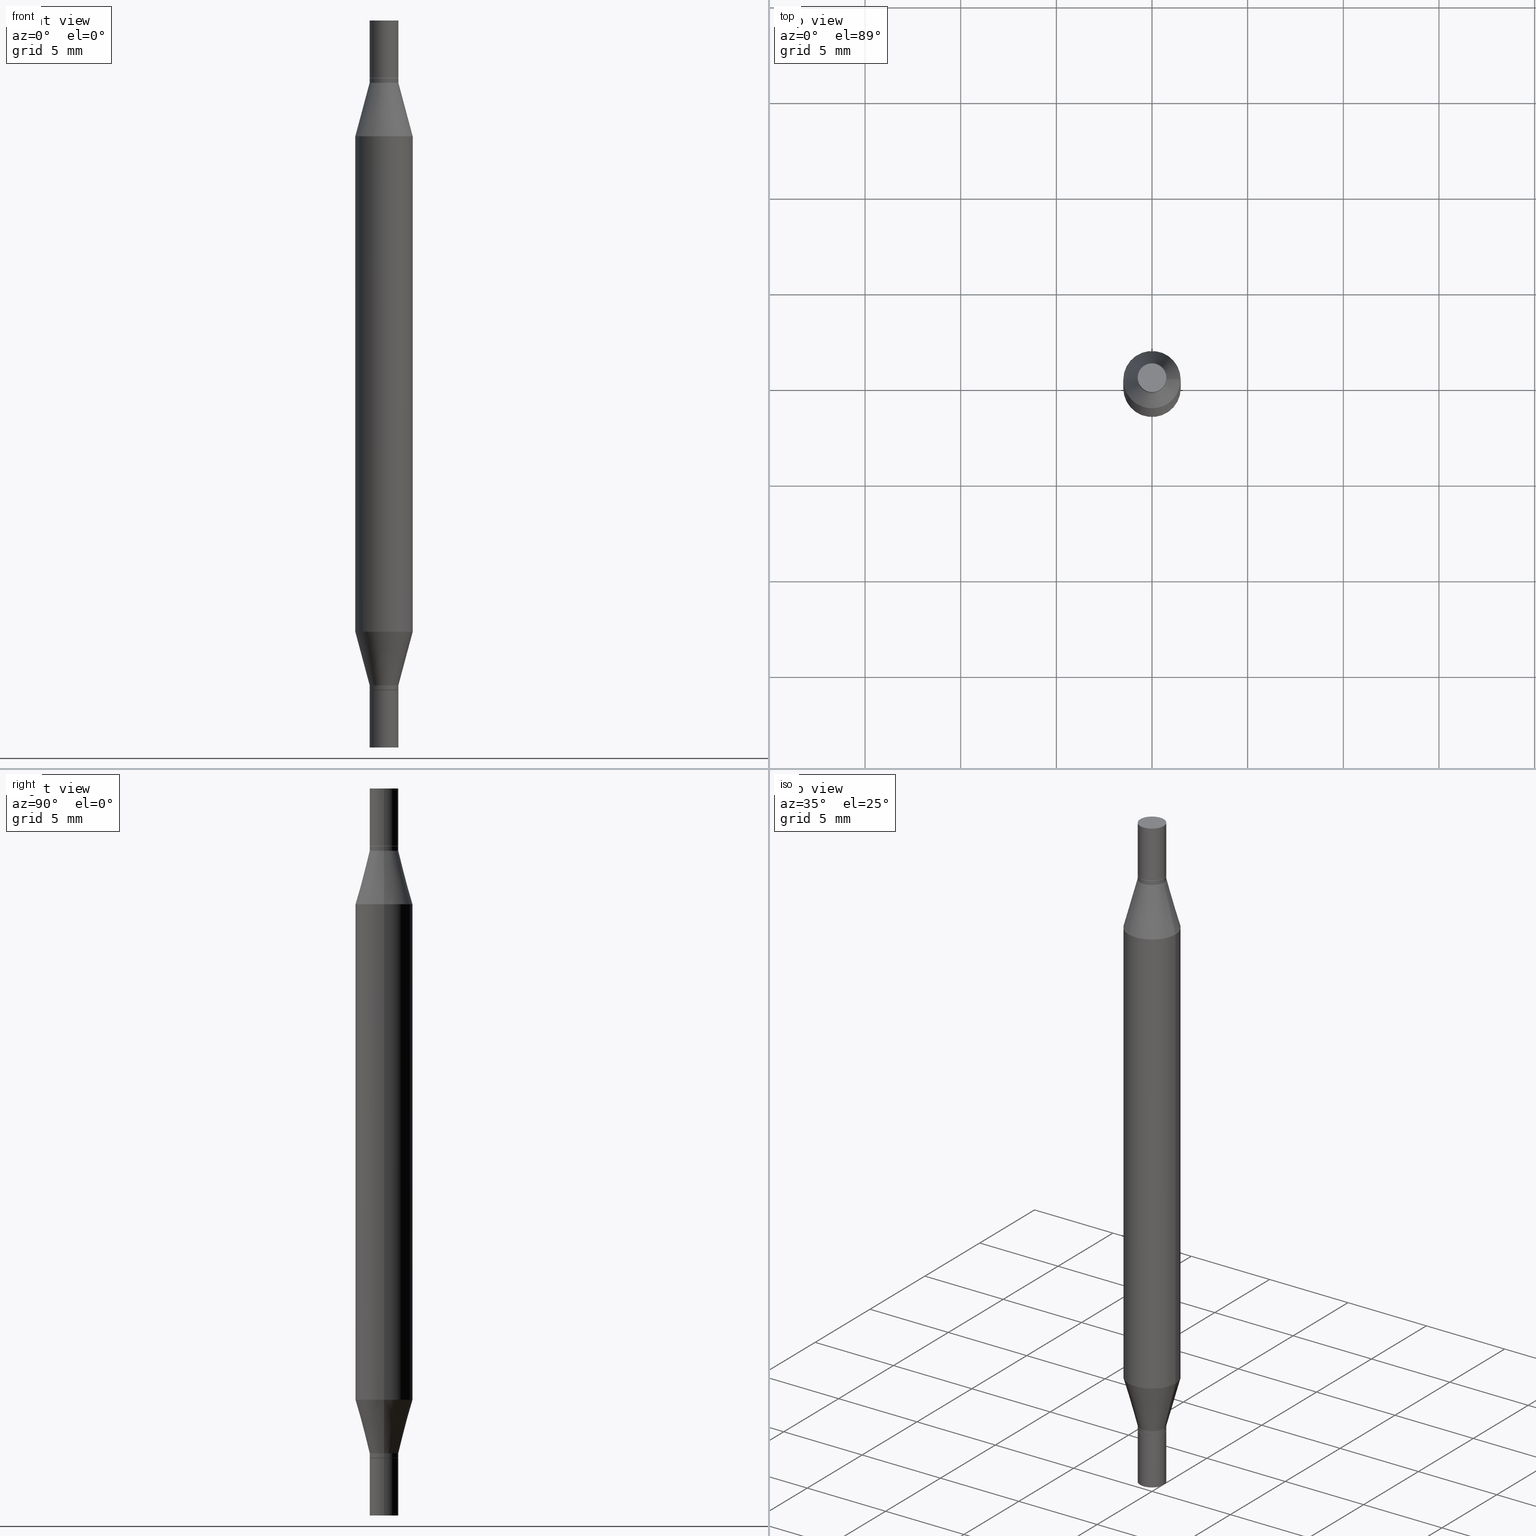
[diagram: canonical four-view strip — front | top / right | iso, engineering-drawing reading convention]
A machine part, canonical four-view strip (front | top / right | iso — engineering-drawing reading convention). The complete STEP part file that produces these views, byte-faithful:
ISO-10303-21;
HEADER;
FILE_DESCRIPTION (( 'STEP AP203' ),
    '1' );
FILE_NAME ('49032.STEP',
    '2024-03-04T16:16:08',
    ( '' ),
    ( '' ),
    'SwSTEP 2.0',
    'SolidWorks 2023',
    '' );
FILE_SCHEMA (( 'CONFIG_CONTROL_DESIGN' ));
ENDSEC;

DATA;
#1 = MANIFOLD_SOLID_BREP ( 'Mirror1[3]', #214 ) ;
#2 = EDGE_LOOP ( 'NONE', ( #157, #850, #227, #307 ) ) ;
#3 = EDGE_CURVE ( 'NONE', #465, #756, #365, .T. ) ;
#4 =( NAMED_UNIT ( * ) SI_UNIT ( $, .STERADIAN. ) SOLID_ANGLE_UNIT ( ) );
#5 = ORIENTED_EDGE ( 'NONE', *, *, #323, .F. ) ;
#6 = DIRECTION ( 'NONE',  ( -2.445468806185136597E-29, -3.491805094961124077E-15, -1.000000000000000000 ) ) ;
#7 = FACE_OUTER_BOUND ( 'NONE', #87, .T. ) ;
#8 = EDGE_CURVE ( 'NONE', #733, #75, #420, .T. ) ;
#9 = ORIENTED_EDGE ( 'NONE', *, *, #55, .T. ) ;
#10 = ORIENTED_EDGE ( 'NONE', *, *, #8, .T. ) ;
#11 = VECTOR ( 'NONE', #411, 39.37007874015747433 ) ;
#12 = ORIENTED_EDGE ( 'NONE', *, *, #740, .T. ) ;
#13 = VECTOR ( 'NONE', #600, 39.37007874015748143 ) ;
#14 = CARTESIAN_POINT ( 'NONE',  ( 3.368633280520025146E-29, -4.809515544256433236E-15, -1.377499999999999947 ) ) ;
#15 = DIRECTION ( 'NONE',  ( 1.000000000000000000, -6.982962677686265922E-15, 2.260776888683160832E-33 ) ) ;
#16 = ORIENTED_EDGE ( 'NONE', *, *, #113, .F. ) ;
#17 = MANIFOLD_SOLID_BREP ( 'Mirror1[1]', #436 ) ;
#18 = EDGE_LOOP ( 'NONE', ( #243, #377, #567, #954 ) ) ;
#19 = CARTESIAN_POINT ( 'NONE',  ( 0.000000000000000000, 0.000000000000000000, 0.000000000000000000 ) ) ;
#20 = CARTESIAN_POINT ( 'NONE',  ( 3.076410765668156654E-29, -8.311408901143919011E-16, -0.2380954988232820146 ) ) ;
#21 = VERTEX_POINT ( 'NONE', #45 ) ;
#22 = CARTESIAN_POINT ( 'NONE',  ( 0.02954999999999991661, -6.530554135165988789E-16, -0.1280000000000001137 ) ) ;
#23 = LINE ( 'NONE', #841, #127 ) ;
#24 = ORIENTED_EDGE ( 'NONE', *, *, #951, .T. ) ;
#25 = CONICAL_SURFACE ( 'NONE', #902, 0.02904999999999999596, 0.7853981633974739252 ) ;
#26 = CARTESIAN_POINT ( 'NONE',  ( -0.02954999999999991661, -2.439811505568221169E-16, -0.1280000000000001137 ) ) ;
#27 = CIRCLE ( 'NONE', #716, 0.02954999999999991661 ) ;
#28 = FACE_OUTER_BOUND ( 'NONE', #969, .T. ) ;
#29 = CIRCLE ( 'NONE', #256, 0.02954999999999991661 ) ;
#30 = DIRECTION ( 'NONE',  ( 1.000000000000000000, -6.982962677686281699E-15, 0.000000000000000000 ) ) ;
#31 =( GEOMETRIC_REPRESENTATION_CONTEXT ( 3 ) GLOBAL_UNCERTAINTY_ASSIGNED_CONTEXT ( ( #315 ) ) GLOBAL_UNIT_ASSIGNED_CONTEXT ( ( #586, #603, #4 ) ) REPRESENTATION_CONTEXT ( 'NONE', 'WORKASPACE' ) );
#32 = AXIS2_PLACEMENT_3D ( 'NONE', #708, #343, #631 ) ;
#33 = MANIFOLD_SOLID_BREP ( 'Mirror1[4]', #234 ) ;
#34 = SHAPE_DEFINITION_REPRESENTATION ( #495, #207 ) ;
#35 = CARTESIAN_POINT ( 'NONE',  ( 3.369856014923117948E-29, -4.811261284925853951E-15, -1.377999999999999892 ) ) ;
#36 = CYLINDRICAL_SURFACE ( 'NONE', #218, 0.02954999999999999988 ) ;
#37 = DIRECTION ( 'NONE',  ( -2.445468806185136597E-29, -3.491805094961124077E-15, -1.000000000000000000 ) ) ;
#38 = CARTESIAN_POINT ( 'NONE',  ( 0.02954999999999991661, -4.983042166796936213E-15, -1.368099999999999872 ) ) ;
#39 = ADVANCED_FACE ( 'NONE', ( #553 ), #712, .T. ) ;
#40 = CARTESIAN_POINT ( 'NONE',  ( 0.000000000000000000, -5.223847416807283040E-15, -1.496099999999999985 ) ) ;
#41 = DIRECTION ( 'NONE',  ( -2.445468806185136597E-29, -3.491805094961124077E-15, -1.000000000000000000 ) ) ;
#42 = CARTESIAN_POINT ( 'NONE',  ( 3.369856014923117948E-29, -4.121399959508538653E-16, -0.1181000000000000383 ) ) ;
#43 = ADVANCED_FACE ( 'NONE', ( #492 ), #778, .T. ) ;
#44 = PLANE ( 'NONE',  #689 ) ;
#45 = CARTESIAN_POINT ( 'NONE',  ( -0.02954999999999999988, -3.221189259251762717E-18, 7.347294627798473966E-31 ) ) ;
#46 = CC_DESIGN_PERSON_AND_ORGANIZATION_ASSIGNMENT ( #381, #244, ( #862 ) ) ;
#47 = AXIS2_PLACEMENT_3D ( 'NONE', #513, #293, #792 ) ;
#48 = CYLINDRICAL_SURFACE ( 'NONE', #651, 0.02954999999999999988 ) ;
#49 = FACE_OUTER_BOUND ( 'NONE', #325, .T. ) ;
#50 = EDGE_CURVE ( 'NONE', #433, #980, #868, .T. ) ;
#51 = CARTESIAN_POINT ( 'NONE',  ( 0.000000000000000000, -5.223847416807283040E-15, -1.496099999999999985 ) ) ;
#52 = LINE ( 'NONE', #959, #110 ) ;
#53 = VECTOR ( 'NONE', #231, 39.37007874015748143 ) ;
#54 = CIRCLE ( 'NONE', #731, 0.02954999999999992008 ) ;
#55 = EDGE_CURVE ( 'NONE', #895, #718, #136, .T. ) ;
#56 = CC_DESIGN_APPROVAL ( #130, ( #398 ) ) ;
#57 = ORIENTED_EDGE ( 'NONE', *, *, #355, .T. ) ;
#58 = DIRECTION ( 'NONE',  ( -1.000000000000000000, 6.982962677686265922E-15, -4.876176775795935793E-29 ) ) ;
#59 = DIRECTION ( 'NONE',  ( 0.2588190451025213501, -5.180148453816008779E-15, -0.9659258262890682012 ) ) ;
#60 = ORIENTED_EDGE ( 'NONE', *, *, #55, .F. ) ;
#61 = LINE ( 'NONE', #444, #577 ) ;
#62 = EDGE_CURVE ( 'NONE', #305, #763, #931, .T. ) ;
#63 = CARTESIAN_POINT ( 'NONE',  ( 3.345645873741884627E-29, -4.467088663909703532E-16, -0.1280000000000001137 ) ) ;
#64 = ORIENTED_EDGE ( 'NONE', *, *, #286, .T. ) ;
#65 = DIRECTION ( 'NONE',  ( 1.000000000000000000, -6.982962677686265133E-15, 0.000000000000000000 ) ) ;
#66 = ADVANCED_FACE ( 'NONE', ( #946 ), #25, .T. ) ;
#67 = DIRECTION ( 'NONE',  ( 1.000000000000000000, -6.982962677686264344E-15, 0.000000000000000000 ) ) ;
#68 = ORIENTED_EDGE ( 'NONE', *, *, #833, .F. ) ;
#69 = AXIS2_PLACEMENT_3D ( 'NONE', #628, #494, #111 ) ;
#70 = CIRCLE ( 'NONE', #925, 0.02954999999999999988 ) ;
#71 = AXIS2_PLACEMENT_3D ( 'NONE', #856, #541, #696 ) ;
#72 = DATE_AND_TIME ( #753, #877 ) ;
#73 = ORIENTED_EDGE ( 'NONE', *, *, #706, .T. ) ;
#74 = LINE ( 'NONE', #321, #941 ) ;
#75 = VERTEX_POINT ( 'NONE', #709 ) ;
#76 = ORIENTED_EDGE ( 'NONE', *, *, #100, .T. ) ;
#77 = EDGE_CURVE ( 'NONE', #718, #895, #187, .T. ) ;
#78 = DATE_AND_TIME ( #592, #410 ) ;
#79 = VERTEX_POINT ( 'NONE', #773 ) ;
#80 = DIRECTION ( 'NONE',  ( -2.445468806185136597E-29, -3.491805094961124077E-15, -1.000000000000000000 ) ) ;
#81 = DIRECTION ( 'NONE',  ( 1.000000000000000000, -6.982962677686265133E-15, 0.000000000000000000 ) ) ;
#82 = VERTEX_POINT ( 'NONE', #557 ) ;
#83 = ADVANCED_FACE ( 'NONE', ( #49 ), #872, .T. ) ;
#84 = MECHANICAL_CONTEXT ( 'NONE', #698, 'mechanical' ) ;
#85 = EDGE_LOOP ( 'NONE', ( #829, #9 ) ) ;
#86 = PLANE ( 'NONE',  #366 ) ;
#87 = EDGE_LOOP ( 'NONE', ( #535, #659, #602, #827 ) ) ;
#88 = PERSON ( 'UNSPECIFIED', 'UNSPECIFIED', 'UNSPECIFIED', ('UNSPECIFIED'), ('UNSPECIFIED'), ('UNSPECIFIED') ) ;
#89 = AXIS2_PLACEMENT_3D ( 'NONE', #488, #940, #782 ) ;
#90 = EDGE_CURVE ( 'NONE', #340, #332, #357, .T. ) ;
#91 = AXIS2_PLACEMENT_3D ( 'NONE', #14, #168, #979 ) ;
#92 = ORIENTED_EDGE ( 'NONE', *, *, #658, .F. ) ;
#93 = CONICAL_SURFACE ( 'NONE', #527, 0.02954999999999991661, 0.2617993877991500740 ) ;
#94 = CARTESIAN_POINT ( 'NONE',  ( 0.000000000000000000, -5.223847416807283040E-15, -1.496099999999999985 ) ) ;
#95 = VECTOR ( 'NONE', #623, 39.37007874015748143 ) ;
#96 = CARTESIAN_POINT ( 'NONE',  ( -0.02904999999999999596, -2.120003558898884021E-16, -0.1181000000000000383 ) ) ;
#97 = EDGE_LOOP ( 'NONE', ( #16, #275 ) ) ;
#98 = DIRECTION ( 'NONE',  ( 1.000000000000000000, -6.982962677686266711E-15, 0.000000000000000000 ) ) ;
#99 = DIRECTION ( 'NONE',  ( 2.438088387897959208E-29, 3.491805094961123683E-15, 1.000000000000000000 ) ) ;
#100 = EDGE_CURVE ( 'NONE', #394, #980, #573, .T. ) ;
#101 = ORIENTED_EDGE ( 'NONE', *, *, #630, .T. ) ;
#102 = CALENDAR_DATE ( 2024, 4, 3 ) ;
#103 = CARTESIAN_POINT ( 'NONE',  ( 0.000000000000000000, -5.223847416807283040E-15, -1.496099999999999985 ) ) ;
#104 = FACE_OUTER_BOUND ( 'NONE', #18, .T. ) ;
#105 = DIRECTION ( 'NONE',  ( -2.445468806185136877E-29, -3.491805094961123683E-15, -1.000000000000000000 ) ) ;
#106 = ADVANCED_FACE ( 'NONE', ( #266 ), #510, .T. ) ;
#107 = DIRECTION ( 'NONE',  ( 1.000000000000000000, -6.982962677686278543E-15, 0.000000000000000000 ) ) ;
#108 = AXIS2_PLACEMENT_3D ( 'NONE', #200, #432, #370 ) ;
#109 = FACE_OUTER_BOUND ( 'NONE', #178, .T. ) ;
#110 = VECTOR ( 'NONE', #284, 39.37007874015748143 ) ;
#111 = DIRECTION ( 'NONE',  ( 1.000000000000000000, -6.982962677686265922E-15, 0.000000000000000000 ) ) ;
#112 = AXIS2_PLACEMENT_3D ( 'NONE', #116, #924, #415 ) ;
#113 = EDGE_CURVE ( 'NONE', #665, #320, #124, .T. ) ;
#114 = CARTESIAN_POINT ( 'NONE',  ( 0.000000000000000000, 0.000000000000000000, 0.000000000000000000 ) ) ;
#115 = CC_DESIGN_PERSON_AND_ORGANIZATION_ASSIGNMENT ( #743, #319, ( #962 ) ) ;
#116 = CARTESIAN_POINT ( 'NONE',  ( 3.369856014923117948E-29, -4.811261284925853951E-15, -1.377999999999999892 ) ) ;
#117 = CARTESIAN_POINT ( 'NONE',  ( 3.369856014923117948E-29, -4.811261284925853951E-15, -1.377999999999999892 ) ) ;
#118 = LINE ( 'NONE', #26, #453 ) ;
#119 = CARTESIAN_POINT ( 'NONE',  ( 0.05904999999999999832, -4.804643186156564878E-15, -1.258004501176717804 ) ) ;
#120 = ORIENTED_EDGE ( 'NONE', *, *, #660, .T. ) ;
#121 = ADVANCED_FACE ( 'NONE', ( #738 ), #760, .T. ) ;
#122 = ORIENTED_EDGE ( 'NONE', *, *, #740, .F. ) ;
#123 = CARTESIAN_POINT ( 'NONE',  ( 0.02954999999999999988, -5.429951778168858482E-15, -1.496099999999999985 ) ) ;
#124 = CIRCLE ( 'NONE', #395, 0.02904999999999999596 ) ;
#125 = CARTESIAN_POINT ( 'NONE',  ( 3.369856014923117948E-29, -4.811261284925853951E-15, -1.377999999999999892 ) ) ;
#126 = AXIS2_PLACEMENT_3D ( 'NONE', #206, #964, #727 ) ;
#127 = VECTOR ( 'NONE', #352, 39.37007874015748143 ) ;
#128 = CARTESIAN_POINT ( 'NONE',  ( 3.369856014923117948E-29, -4.121399959508538653E-16, -0.1181000000000000383 ) ) ;
#129 = DIRECTION ( 'NONE',  ( 1.000000000000000000, -6.982962677686265922E-15, 2.260776888683160832E-33 ) ) ;
#130 = APPROVAL ( #250, 'UNSPECIFIED' ) ;
#131 = LINE ( 'NONE', #585, #859 ) ;
#132 = DIRECTION ( 'NONE',  ( 1.000000000000000000, -6.982962677686273021E-15, 0.000000000000000000 ) ) ;
#133 = ORIENTED_EDGE ( 'NONE', *, *, #798, .T. ) ;
#134 = DIRECTION ( 'NONE',  ( -2.445468806185136597E-29, 3.491481338843145583E-15, 1.000000000000000000 ) ) ;
#135 = LINE ( 'NONE', #290, #216 ) ;
#136 = CIRCLE ( 'NONE', #684, 0.02954999999999999988 ) ;
#137 = VERTEX_POINT ( 'NONE', #303 ) ;
#138 = AXIS2_PLACEMENT_3D ( 'NONE', #540, #451, #519 ) ;
#139 = CIRCLE ( 'NONE', #688, 0.05904999999999999832 ) ;
#140 = CC_DESIGN_SECURITY_CLASSIFICATION ( #398, ( #862 ) ) ;
#141 = ADVANCED_FACE ( 'NONE', ( #373 ), #662, .F. ) ;
#142 = FACE_OUTER_BOUND ( 'NONE', #287, .T. ) ;
#143 = FACE_OUTER_BOUND ( 'NONE', #165, .T. ) ;
#144 = EDGE_LOOP ( 'NONE', ( #254, #24, #5, #314 ) ) ;
#145 = DIRECTION ( 'NONE',  ( 2.445468806185136597E-29, 3.491805094961124077E-15, 1.000000000000000000 ) ) ;
#146 = EDGE_LOOP ( 'NONE', ( #682, #402, #965, #454 ) ) ;
#147 = DIRECTION ( 'NONE',  ( 2.445468806185136597E-29, 3.491805094961124077E-15, 1.000000000000000000 ) ) ;
#148 = ORIENTED_EDGE ( 'NONE', *, *, #591, .T. ) ;
#149 = PERSON_AND_ORGANIZATION ( #88, #791 ) ;
#150 = ORIENTED_EDGE ( 'NONE', *, *, #504, .T. ) ;
#151 = LINE ( 'NONE', #745, #53 ) ;
#152 = DIRECTION ( 'NONE',  ( -2.445468806185136597E-29, 3.491481338843145583E-15, 1.000000000000000000 ) ) ;
#153 = EDGE_CURVE ( 'NONE', #376, #328, #794, .T. ) ;
#154 = AXIS2_PLACEMENT_3D ( 'NONE', #94, #80, #900 ) ;
#155 = CIRCLE ( 'NONE', #173, 0.02954999999999992008 ) ;
#156 = ORIENTED_EDGE ( 'NONE', *, *, #621, .F. ) ;
#157 = ORIENTED_EDGE ( 'NONE', *, *, #286, .F. ) ;
#158 = DIRECTION ( 'NONE',  ( 2.445468806185136597E-29, 3.491805094961124077E-15, 1.000000000000000000 ) ) ;
#159 = CARTESIAN_POINT ( 'NONE',  ( 0.02954999999999999988, -2.061043613615753919E-16, 6.680595706058740339E-35 ) ) ;
#160 = ORIENTED_EDGE ( 'NONE', *, *, #793, .F. ) ;
#161 = EDGE_CURVE ( 'NONE', #332, #882, #294, .T. ) ;
#162 = DATE_AND_TIME ( #815, #578 ) ;
#163 = CARTESIAN_POINT ( 'NONE',  ( -0.02954999999999999988, -4.807467879567433237E-15, -1.496099999999999985 ) ) ;
#164 = DIRECTION ( 'NONE',  ( -2.445468806185136877E-29, -3.491805094961123683E-15, -1.000000000000000000 ) ) ;
#165 = EDGE_LOOP ( 'NONE', ( #821, #421, #876, #170 ) ) ;
#166 = COORDINATED_UNIVERSAL_TIME_OFFSET ( 5, 0, .BEHIND. ) ;
#167 = VERTEX_POINT ( 'NONE', #646 ) ;
#168 = DIRECTION ( 'NONE',  ( -2.445468806185136597E-29, 3.491481338843145583E-15, 1.000000000000000000 ) ) ;
#169 = DIRECTION ( 'NONE',  ( 1.000000000000000000, -6.982962677686266711E-15, 0.000000000000000000 ) ) ;
#170 = ORIENTED_EDGE ( 'NONE', *, *, #489, .T. ) ;
#171 = CIRCLE ( 'NONE', #686, 0.02904999999999999596 ) ;
#172 = ADVANCED_FACE ( 'NONE', ( #588 ), #797, .T. ) ;
#173 = AXIS2_PLACEMENT_3D ( 'NONE', #388, #831, #67 ) ;
#174 = CARTESIAN_POINT ( 'NONE',  ( 3.658665880933582389E-29, -5.223605231043229660E-15, -1.496099999999999985 ) ) ;
#175 = VECTOR ( 'NONE', #285, 39.37007874015747433 ) ;
#176 = CARTESIAN_POINT ( 'NONE',  ( 3.368633280520025146E-29, -4.138858984983355777E-16, -0.1185999999999999277 ) ) ;
#177 = APPROVAL ( #528, 'UNSPECIFIED' ) ;
#178 = EDGE_LOOP ( 'NONE', ( #296, #12, #926, #92 ) ) ;
#179 = EDGE_CURVE ( 'NONE', #917, #655, #666, .T. ) ;
#180 = CARTESIAN_POINT ( 'NONE',  ( 0.02954999999999999988, -2.061043613615753919E-16, 6.680595706058740339E-35 ) ) ;
#181 = CARTESIAN_POINT ( 'NONE',  ( 3.369856014923117948E-29, -4.811261284925853951E-15, -1.377999999999999892 ) ) ;
#182 = DIRECTION ( 'NONE',  ( -0.7071067811865656694, 2.382025595312421833E-15, -0.7071067811865294761 ) ) ;
#183 = CYLINDRICAL_SURFACE ( 'NONE', #858, 0.02954999999999992008 ) ;
#184 = DIRECTION ( 'NONE',  ( 1.000000000000000000, -6.982962677686266711E-15, 4.876176775795935232E-29 ) ) ;
#185 = DIRECTION ( 'NONE',  ( -2.445468806185136597E-29, -3.491805094961124077E-15, -1.000000000000000000 ) ) ;
#186 = ADVANCED_FACE ( 'NONE', ( #143 ), #871, .T. ) ;
#187 = CIRCLE ( 'NONE', #939, 0.02954999999999999988 ) ;
#188 = DIRECTION ( 'NONE',  ( 2.445468806185136597E-29, 3.491805094961124077E-15, 1.000000000000000000 ) ) ;
#189 = AXIS2_PLACEMENT_3D ( 'NONE', #699, #490, #107 ) ;
#190 = DIRECTION ( 'NONE',  ( 2.445468806185136597E-29, 3.491805094961124077E-15, 1.000000000000000000 ) ) ;
#191 = AXIS2_PLACEMENT_3D ( 'NONE', #826, #152, #976 ) ;
#192 = CARTESIAN_POINT ( 'NONE',  ( 3.345645873741884627E-29, -4.467088663909703532E-16, -0.1280000000000001137 ) ) ;
#193 = EDGE_CURVE ( 'NONE', #251, #167, #351, .T. ) ;
#194 = DIRECTION ( 'NONE',  ( -2.438088387897959208E-29, -3.491805094961123683E-15, -1.000000000000000000 ) ) ;
#195 = CARTESIAN_POINT ( 'NONE',  ( -0.02954999999999999988, -3.221189259251762717E-18, 7.347294627798473966E-31 ) ) ;
#196 = DIRECTION ( 'NONE',  ( 1.000000000000000000, -6.982962677686278543E-15, 0.000000000000000000 ) ) ;
#197 = DIRECTION ( 'NONE',  ( -2.438088387897960049E-29, 3.491481338843145188E-15, 1.000000000000000000 ) ) ;
#198 = ORIENTED_EDGE ( 'NONE', *, *, #50, .F. ) ;
#199 = DIRECTION ( 'NONE',  ( 1.000000000000000000, -6.982962677686261977E-15, 0.000000000000000000 ) ) ;
#200 = CARTESIAN_POINT ( 'NONE',  ( 0.000000000000000000, -5.223847416807283040E-15, -1.496099999999999985 ) ) ;
#201 = CC_DESIGN_PERSON_AND_ORGANIZATION_ASSIGNMENT ( #230, #912, ( #862 ) ) ;
#202 = CIRCLE ( 'NONE', #717, 0.05904999999999999832 ) ;
#203 = ORIENTED_EDGE ( 'NONE', *, *, #525, .T. ) ;
#204 = FACE_OUTER_BOUND ( 'NONE', #505, .T. ) ;
#205 = ADVANCED_FACE ( 'NONE', ( #428 ), #282, .F. ) ;
#206 = CARTESIAN_POINT ( 'NONE',  ( 3.511396773457423080E-29, -2.106555581788587796E-16, 0.000000000000000000 ) ) ;
#207 = ADVANCED_BREP_SHAPE_REPRESENTATION ( '49032', ( #362, #17, #1, #33, #675, #318 ), #31 ) ;
#208 = EDGE_CURVE ( 'NONE', #82, #302, #649, .T. ) ;
#209 = CARTESIAN_POINT ( 'NONE',  ( 3.076410765668156654E-29, -8.311408901143919011E-16, -0.2380954988232820146 ) ) ;
#210 = LINE ( 'NONE', #507, #498 ) ;
#211 = DIRECTION ( 'NONE',  ( 2.445468806185136597E-29, 3.491805094961124077E-15, 1.000000000000000000 ) ) ;
#212 = APPLICATION_CONTEXT ( 'configuration controlled 3d designs of mechanical parts and assemblies' ) ;
#213 = CARTESIAN_POINT ( 'NONE',  ( 3.076410765668156654E-29, -4.392299240039190746E-15, -1.258004501176717804 ) ) ;
#214 = CLOSED_SHELL ( 'NONE', ( #39, #205, #575, #261 ) ) ;
#215 = EDGE_LOOP ( 'NONE', ( #460, #737, #604, #564 ) ) ;
#216 = VECTOR ( 'NONE', #695, 39.37007874015748143 ) ;
#217 = CONICAL_SURFACE ( 'NONE', #844, 0.02904999999999999596, 0.7853981633974739252 ) ;
#218 = AXIS2_PLACEMENT_3D ( 'NONE', #339, #776, #700 ) ;
#219 = DIRECTION ( 'NONE',  ( 1.000000000000000000, -6.982962677686264344E-15, 0.000000000000000000 ) ) ;
#220 = APPLICATION_PROTOCOL_DEFINITION ( 'international standard', 'config_control_design', 1994, #212 ) ;
#221 = DIRECTION ( 'NONE',  ( -2.445468806185136597E-29, -3.491805094961124077E-15, -1.000000000000000000 ) ) ;
#222 = DIRECTION ( 'NONE',  ( -2.445468806185136597E-29, -3.491805094961124077E-15, -1.000000000000000000 ) ) ;
#223 = ORIENTED_EDGE ( 'NONE', *, *, #516, .T. ) ;
#224 = EDGE_CURVE ( 'NONE', #434, #463, #210, .T. ) ;
#225 = EDGE_CURVE ( 'NONE', #718, #465, #135, .T. ) ;
#226 = PERSON_AND_ORGANIZATION_ROLE ( 'creator' ) ;
#227 = ORIENTED_EDGE ( 'NONE', *, *, #799, .T. ) ;
#228 = DIRECTION ( 'NONE',  ( 2.445468806185136597E-29, 3.491805094961124077E-15, 1.000000000000000000 ) ) ;
#229 = ORIENTED_EDGE ( 'NONE', *, *, #504, .F. ) ;
#230 = PERSON_AND_ORGANIZATION ( #88, #791 ) ;
#231 = DIRECTION ( 'NONE',  ( -2.445468806185136877E-29, 3.491481338843145188E-15, 1.000000000000000000 ) ) ;
#232 = CARTESIAN_POINT ( 'NONE',  ( 0.02954999999999992008, -6.202324456239627230E-16, -0.1185999999999999277 ) ) ;
#233 = ORIENTED_EDGE ( 'NONE', *, *, #345, .T. ) ;
#234 = CLOSED_SHELL ( 'NONE', ( #406, #452, #932, #824 ) ) ;
#235 = AXIS2_PLACEMENT_3D ( 'NONE', #360, #501, #953 ) ;
#236 = AXIS2_PLACEMENT_3D ( 'NONE', #796, #726, #583 ) ;
#237 = COORDINATED_UNIVERSAL_TIME_OFFSET ( 5, 0, .BEHIND. ) ;
#238 = ORIENTED_EDGE ( 'NONE', *, *, #845, .F. ) ;
#239 = FACE_OUTER_BOUND ( 'NONE', #405, .T. ) ;
#240 = CARTESIAN_POINT ( 'NONE',  ( -0.05905000000000000526, -4.818735010038875060E-15, -1.496099999999999985 ) ) ;
#241 = ORIENTED_EDGE ( 'NONE', *, *, #658, .T. ) ;
#242 = CC_DESIGN_PERSON_AND_ORGANIZATION_ASSIGNMENT ( #462, #226, ( #861 ) ) ;
#243 = ORIENTED_EDGE ( 'NONE', *, *, #721, .F. ) ;
#244 = PERSON_AND_ORGANIZATION_ROLE ( 'design_supplier' ) ;
#245 = EDGE_LOOP ( 'NONE', ( #223, #386 ) ) ;
#246 = DIRECTION ( 'NONE',  ( -0.000000000000000000, -3.491643216902134830E-15, -1.000000000000000000 ) ) ;
#247 = CARTESIAN_POINT ( 'NONE',  ( 3.076410765668156654E-29, -8.311408901143919011E-16, -0.2380954988232820146 ) ) ;
#248 = ORIENTED_EDGE ( 'NONE', *, *, #153, .F. ) ;
#249 = ADVANCED_FACE ( 'NONE', ( #840 ), #887, .T. ) ;
#250 = APPROVAL_STATUS ( 'not_yet_approved' ) ;
#251 = VERTEX_POINT ( 'NONE', #383 ) ;
#252 = DIRECTION ( 'NONE',  ( 1.000000000000000000, -6.982962677686266711E-15, 4.876176775795935793E-29 ) ) ;
#253 = DIRECTION ( 'NONE',  ( 1.000000000000000000, -6.982962677686265922E-15, 0.000000000000000000 ) ) ;
#254 = ORIENTED_EDGE ( 'NONE', *, *, #113, .T. ) ;
#255 = AXIS2_PLACEMENT_3D ( 'NONE', #464, #469, #759 ) ;
#256 = AXIS2_PLACEMENT_3D ( 'NONE', #441, #809, #884 ) ;
#257 = DIRECTION ( 'NONE',  ( 2.445468806185136597E-29, 3.491805094961124077E-15, 1.000000000000000000 ) ) ;
#258 = CARTESIAN_POINT ( 'NONE',  ( 3.658665880933582389E-29, -5.223605231043229660E-15, -1.496099999999999985 ) ) ;
#259 = ORIENTED_EDGE ( 'NONE', *, *, #951, .F. ) ;
#260 = DIRECTION ( 'NONE',  ( 1.000000000000000000, -6.982962677686265922E-15, 0.000000000000000000 ) ) ;
#261 = ADVANCED_FACE ( 'NONE', ( #392 ), #86, .F. ) ;
#262 = PLANE ( 'NONE',  #298 ) ;
#263 = ORIENTED_EDGE ( 'NONE', *, *, #208, .F. ) ;
#264 = CARTESIAN_POINT ( 'NONE',  ( 0.000000000000000000, -5.223847416807283040E-15, -1.496099999999999985 ) ) ;
#265 = CARTESIAN_POINT ( 'NONE',  ( 0.02954999999999992008, -2.063465471256286244E-16, 1.440910237247695041E-30 ) ) ;
#266 = FACE_OUTER_BOUND ( 'NONE', #786, .T. ) ;
#267 = PLANE ( 'NONE',  #378 ) ;
#268 = AXIS2_PLACEMENT_3D ( 'NONE', #922, #257, #547 ) ;
#269 = DIRECTION ( 'NONE',  ( -2.445468806185136597E-29, 3.491481338843145583E-15, 1.000000000000000000 ) ) ;
#270 = VECTOR ( 'NONE', #309, 39.37007874015748143 ) ;
#271 = CARTESIAN_POINT ( 'NONE',  ( 3.658665880933582389E-29, 2.421857640538043390E-19, 0.000000000000000000 ) ) ;
#272 = AXIS2_PLACEMENT_3D ( 'NONE', #929, #853, #184 ) ;
#273 = DIRECTION ( 'NONE',  ( 2.445468806185136597E-29, 3.491805094961124077E-15, 1.000000000000000000 ) ) ;
#274 = LINE ( 'NONE', #442, #300 ) ;
#275 = ORIENTED_EDGE ( 'NONE', *, *, #879, .F. ) ;
#276 = EDGE_CURVE ( 'NONE', #522, #538, #437, .T. ) ;
#277 = ORIENTED_EDGE ( 'NONE', *, *, #799, .F. ) ;
#278 = DIRECTION ( 'NONE',  ( -2.445468806185136597E-29, 3.491481338843145583E-15, 1.000000000000000000 ) ) ;
#279 = EDGE_LOOP ( 'NONE', ( #263, #749 ) ) ;
#280 = EDGE_CURVE ( 'NONE', #895, #756, #403, .T. ) ;
#281 = DIRECTION ( 'NONE',  ( 2.438088387897960049E-29, -3.491481338843145188E-15, -1.000000000000000000 ) ) ;
#282 = PLANE ( 'NONE',  #126 ) ;
#283 = ORIENTED_EDGE ( 'NONE', *, *, #774, .T. ) ;
#284 = DIRECTION ( 'NONE',  ( -2.445468806185136877E-29, -3.491805094961123683E-15, -1.000000000000000000 ) ) ;
#285 = DIRECTION ( 'NONE',  ( 0.2588190451025213501, 1.565188264969621968E-15, 0.9659258262890682012 ) ) ;
#286 = EDGE_CURVE ( 'NONE', #75, #763, #903, .T. ) ;
#287 = EDGE_LOOP ( 'NONE', ( #76, #687, #832, #477 ) ) ;
#288 = EDGE_CURVE ( 'NONE', #291, #376, #70, .T. ) ;
#289 = DIRECTION ( 'NONE',  ( 1.000000000000000000, -6.982962677686266711E-15, 4.876176775795935793E-29 ) ) ;
#290 = CARTESIAN_POINT ( 'NONE',  ( 0.02954999999999999988, -5.430193963932912651E-15, -1.496099999999999985 ) ) ;
#291 = VERTEX_POINT ( 'NONE', #163 ) ;
#292 = CC_DESIGN_PERSON_AND_ORGANIZATION_ASSIGNMENT ( #670, #967, ( #398 ) ) ;
#293 = DIRECTION ( 'NONE',  ( -2.445468806185136597E-29, -3.491805094961124077E-15, -1.000000000000000000 ) ) ;
#294 = LINE ( 'NONE', #732, #624 ) ;
#295 = CLOSED_SHELL ( 'NONE', ( #569, #508, #66, #894, #558, #335, #783, #692, #958, #186, #83, #172, #834, #942, #418, #921 ) ) ;
#296 = ORIENTED_EDGE ( 'NONE', *, *, #648, .F. ) ;
#297 = AXIS2_PLACEMENT_3D ( 'NONE', #114, #622, #481 ) ;
#298 = AXIS2_PLACEMENT_3D ( 'NONE', #556, #99, #938 ) ;
#299 = EDGE_CURVE ( 'NONE', #980, #655, #74, .T. ) ;
#300 = VECTOR ( 'NONE', #735, 39.37007874015748143 ) ;
#301 = APPROVAL_ROLE ( '' ) ;
#302 = VERTEX_POINT ( 'NONE', #530 ) ;
#303 = CARTESIAN_POINT ( 'NONE',  ( -0.02954999999999991661, -2.275696666105042854E-16, -0.1280000000000001137 ) ) ;
#304 = FACE_OUTER_BOUND ( 'NONE', #502, .T. ) ;
#305 = VERTEX_POINT ( 'NONE', #767 ) ;
#306 = COORDINATED_UNIVERSAL_TIME_OFFSET ( 5, 0, .BEHIND. ) ;
#307 = ORIENTED_EDGE ( 'NONE', *, *, #630, .F. ) ;
#308 = FACE_OUTER_BOUND ( 'NONE', #697, .T. ) ;
#309 = DIRECTION ( 'NONE',  ( -2.445468806185136877E-29, -3.491805094961123683E-15, -1.000000000000000000 ) ) ;
#310 = ORIENTED_EDGE ( 'NONE', *, *, #62, .T. ) ;
#311 = EDGE_LOOP ( 'NONE', ( #886, #526, #148, #549 ) ) ;
#312 = DIRECTION ( 'NONE',  ( 1.000000000000000000, -6.982962677686261977E-15, 0.000000000000000000 ) ) ;
#313 = DIRECTION ( 'NONE',  ( -2.445468806185136597E-29, -3.491805094961124077E-15, -1.000000000000000000 ) ) ;
#314 = ORIENTED_EDGE ( 'NONE', *, *, #848, .F. ) ;
#315 = UNCERTAINTY_MEASURE_WITH_UNIT (LENGTH_MEASURE( 1.000000000000000082E-05 ), #586, 'distance_accuracy_value', 'NONE');
#316 = CONICAL_SURFACE ( 'NONE', #439, 0.02904999999999999596, 0.7853981633974739252 ) ;
#317 = ORIENTED_EDGE ( 'NONE', *, *, #766, .F. ) ;
#318 = AXIS2_PLACEMENT_3D ( 'NONE', #828, #449, #748 ) ;
#319 = PERSON_AND_ORGANIZATION_ROLE ( 'design_owner' ) ;
#320 = VERTEX_POINT ( 'NONE', #605 ) ;
#321 = CARTESIAN_POINT ( 'NONE',  ( -0.02954999999999991661, -4.566730241254198034E-15, -1.368099999999999872 ) ) ;
#322 = CARTESIAN_POINT ( 'NONE',  ( 3.369856014923117948E-29, -4.121399959508538653E-16, -0.1181000000000000383 ) ) ;
#323 = EDGE_CURVE ( 'NONE', #897, #433, #511, .T. ) ;
#324 = VERTEX_POINT ( 'NONE', #536 ) ;
#325 = EDGE_LOOP ( 'NONE', ( #229, #539, #795, #532 ) ) ;
#326 = CARTESIAN_POINT ( 'NONE',  ( 2.063465471256628659E-16, 0.02954999999999958701, -0.1181000000000003020 ) ) ;
#327 = CARTESIAN_POINT ( 'NONE',  ( -0.02954999999999992008, -5.021119700973135544E-15, -1.496099999999999985 ) ) ;
#328 = VERTEX_POINT ( 'NONE', #914 ) ;
#329 = EDGE_CURVE ( 'NONE', #324, #328, #703, .T. ) ;
#330 = CYLINDRICAL_SURFACE ( 'NONE', #297, 0.02954999999999992008 ) ;
#331 = LINE ( 'NONE', #785, #95 ) ;
#332 = VERTEX_POINT ( 'NONE', #22 ) ;
#333 = VECTOR ( 'NONE', #572, 39.37007874015748143 ) ;
#334 = AXIS2_PLACEMENT_3D ( 'NONE', #561, #478, #784 ) ;
#335 = ADVANCED_FACE ( 'NONE', ( #308 ), #618, .T. ) ;
#336 = AXIS2_PLACEMENT_3D ( 'NONE', #209, #211, #356 ) ;
#337 = DATE_AND_TIME ( #102, #440 ) ;
#338 = CARTESIAN_POINT ( 'NONE',  ( -0.02954999999999992008, -2.111581826641858869E-16, -0.1185999999999999277 ) ) ;
#339 = CARTESIAN_POINT ( 'NONE',  ( 0.000000000000000000, -5.223847416807283040E-15, -1.496099999999999985 ) ) ;
#340 = VERTEX_POINT ( 'NONE', #907 ) ;
#341 = ADVANCED_FACE ( 'NONE', ( #690 ), #459, .T. ) ;
#342 = DIRECTION ( 'NONE',  ( 1.000000000000000000, -6.982962677686261977E-15, 0.000000000000000000 ) ) ;
#343 = DIRECTION ( 'NONE',  ( -2.445468806185136597E-29, -3.491805094961124077E-15, -1.000000000000000000 ) ) ;
#344 = CARTESIAN_POINT ( 'NONE',  ( 0.02954999999999992008, -5.430193963932912651E-15, -1.496099999999999985 ) ) ;
#345 = EDGE_CURVE ( 'NONE', #733, #305, #804, .T. ) ;
#346 = CARTESIAN_POINT ( 'NONE',  ( 3.511396773457423080E-29, -2.106555581788587796E-16, 0.000000000000000000 ) ) ;
#347 = DIRECTION ( 'NONE',  ( 1.000000000000000000, -6.982962677686265133E-15, 0.000000000000000000 ) ) ;
#348 = CARTESIAN_POINT ( 'NONE',  ( 3.345645873741884627E-29, -4.776695619671307391E-15, -1.368099999999999872 ) ) ;
#349 = AXIS2_PLACEMENT_3D ( 'NONE', #63, #221, #65 ) ;
#350 = CARTESIAN_POINT ( 'NONE',  ( 3.511396773457423080E-29, -5.434502974986141795E-15, -1.496099999999999985 ) ) ;
#351 = CIRCLE ( 'NONE', #235, 0.02954999999999991661 ) ;
#352 = DIRECTION ( 'NONE',  ( -2.445468806185136877E-29, -3.491805094961123683E-15, -1.000000000000000000 ) ) ;
#353 = DIRECTION ( 'NONE',  ( -2.445468806185136877E-29, 3.491481338843145188E-15, 1.000000000000000000 ) ) ;
#354 = CONICAL_SURFACE ( 'NONE', #891, 0.02904999999999999596, 0.7853981633974739252 ) ;
#355 = EDGE_CURVE ( 'NONE', #538, #522, #396, .T. ) ;
#356 = DIRECTION ( 'NONE',  ( 1.000000000000000000, -6.982962677686265133E-15, 0.000000000000000000 ) ) ;
#357 = LINE ( 'NONE', #344, #701 ) ;
#358 = EDGE_CURVE ( 'NONE', #291, #324, #151, .T. ) ;
#359 = FACE_OUTER_BOUND ( 'NONE', #752, .T. ) ;
#360 = CARTESIAN_POINT ( 'NONE',  ( 3.345645873741884627E-29, -4.467088663909703532E-16, -0.1280000000000001137 ) ) ;
#361 = ORIENTED_EDGE ( 'NONE', *, *, #652, .T. ) ;
#362 = MANIFOLD_SOLID_BREP ( 'Body-Move/Copy2[1]', #803 ) ;
#363 = ADVANCED_FACE ( 'NONE', ( #239 ), #523, .F. ) ;
#364 = DIRECTION ( 'NONE',  ( 1.000000000000000000, -6.982962677686281699E-15, 0.000000000000000000 ) ) ;
#365 = CIRCLE ( 'NONE', #69, 0.02954999999999999988 ) ;
#366 = AXIS2_PLACEMENT_3D ( 'NONE', #326, #599, #594 ) ;
#367 = VECTOR ( 'NONE', #880, 39.37007874015748143 ) ;
#368 = VERTEX_POINT ( 'NONE', #633 ) ;
#369 = CARTESIAN_POINT ( 'NONE',  ( 0.02954999999999991661, -6.530554135165988789E-16, -0.1280000000000001137 ) ) ;
#370 = DIRECTION ( 'NONE',  ( 1.000000000000000000, -6.982962677686280910E-15, 0.000000000000000000 ) ) ;
#371 = EDGE_LOOP ( 'NONE', ( #259, #883, #468, #899 ) ) ;
#372 = DIRECTION ( 'NONE',  ( -2.445468806185136877E-29, -3.491805094961123683E-15, -1.000000000000000000 ) ) ;
#373 = FACE_OUTER_BOUND ( 'NONE', #430, .T. ) ;
#374 = ORIENTED_EDGE ( 'NONE', *, *, #329, .F. ) ;
#375 =( LENGTH_UNIT ( ) NAMED_UNIT ( * ) SI_UNIT ( $, .METRE. ) );
#376 = VERTEX_POINT ( 'NONE', #123 ) ;
#377 = ORIENTED_EDGE ( 'NONE', *, *, #429, .F. ) ;
#378 = AXIS2_PLACEMENT_3D ( 'NONE', #350, #197, #933 ) ;
#379 = VECTOR ( 'NONE', #476, 39.37007874015748143 ) ;
#380 = DIMENSIONAL_EXPONENTS ( 1.000000000000000000, 0.000000000000000000, 0.000000000000000000, 0.000000000000000000, 0.000000000000000000, 0.000000000000000000, 0.000000000000000000 ) ;
#381 = PERSON_AND_ORGANIZATION ( #88, #791 ) ;
#382 = ORIENTED_EDGE ( 'NONE', *, *, #299, .F. ) ;
#383 = CARTESIAN_POINT ( 'NONE',  ( 0.02954999999999991661, -6.530554135165988789E-16, -0.1280000000000001137 ) ) ;
#384 = ORIENTED_EDGE ( 'NONE', *, *, #225, .F. ) ;
#385 = FACE_OUTER_BOUND ( 'NONE', #593, .T. ) ;
#386 = ORIENTED_EDGE ( 'NONE', *, *, #329, .T. ) ;
#387 = DIRECTION ( 'NONE',  ( 0.000000000000000000, 1.000000000000000000, -3.491643216902134435E-15 ) ) ;
#388 = CARTESIAN_POINT ( 'NONE',  ( 3.368633280520025146E-29, -4.138858984983355777E-16, -0.1185999999999999277 ) ) ;
#389 = ORIENTED_EDGE ( 'NONE', *, *, #641, .T. ) ;
#390 = ORIENTED_EDGE ( 'NONE', *, *, #568, .F. ) ;
#391 = EDGE_CURVE ( 'NONE', #302, #82, #608, .T. ) ;
#392 = FACE_OUTER_BOUND ( 'NONE', #747, .T. ) ;
#393 = DIRECTION ( 'NONE',  ( -2.438088387897959208E-29, -3.491805094961123683E-15, -1.000000000000000000 ) ) ;
#394 = VERTEX_POINT ( 'NONE', #38 ) ;
#395 = AXIS2_PLACEMENT_3D ( 'NONE', #117, #865, #196 ) ;
#396 = CIRCLE ( 'NONE', #138, 0.05905000000000000526 ) ;
#397 = CIRCLE ( 'NONE', #560, 0.05904999999999999832 ) ;
#398 = SECURITY_CLASSIFICATION ( '', '', #757 ) ;
#399 = ORIENTED_EDGE ( 'NONE', *, *, #552, .T. ) ;
#400 = CARTESIAN_POINT ( 'NONE',  ( 1.829332940466791194E-29, -2.611802615521614830E-15, -0.7480499999999999927 ) ) ;
#401 = CARTESIAN_POINT ( 'NONE',  ( 3.345645873741884627E-29, -4.467088663909703532E-16, -0.1280000000000001137 ) ) ;
#402 = ORIENTED_EDGE ( 'NONE', *, *, #50, .T. ) ;
#403 = LINE ( 'NONE', #836, #423 ) ;
#404 = DIRECTION ( 'NONE',  ( 2.445468806185136597E-29, 3.491805094961124077E-15, 1.000000000000000000 ) ) ;
#405 = EDGE_LOOP ( 'NONE', ( #57, #838 ) ) ;
#406 = ADVANCED_FACE ( 'NONE', ( #629 ), #565, .T. ) ;
#407 = DIRECTION ( 'NONE',  ( 1.000000000000000000, -6.982962677686261977E-15, 0.000000000000000000 ) ) ;
#408 = CYLINDRICAL_SURFACE ( 'NONE', #825, 0.05905000000000000526 ) ;
#409 = CARTESIAN_POINT ( 'NONE',  ( -0.02954999999999992008, 2.099653784171090371E-16, -1.453545319170320697E-30 ) ) ;
#410 = LOCAL_TIME ( 11, 16, 8.000000000000000000, #166 ) ;
#411 = DIRECTION ( 'NONE',  ( -0.2588190451025213501, -1.597197180879714326E-15, -0.9659258262890682012 ) ) ;
#412 = CYLINDRICAL_SURFACE ( 'NONE', #32, 0.05905000000000000526 ) ;
#413 = CARTESIAN_POINT ( 'NONE',  ( 0.02904999999999999596, -6.149950617376399263E-16, -0.1181000000000000383 ) ) ;
#414 = PLANE ( 'NONE',  #587 ) ;
#415 = DIRECTION ( 'NONE',  ( 1.000000000000000000, -6.982962677686278543E-15, 0.000000000000000000 ) ) ;
#416 = EDGE_LOOP ( 'NONE', ( #613, #671, #582, #680 ) ) ;
#417 = DIRECTION ( 'NONE',  ( 1.000000000000000000, -6.982962677686280910E-15, 0.000000000000000000 ) ) ;
#418 = ADVANCED_FACE ( 'NONE', ( #550 ), #955, .T. ) ;
#419 = DIRECTION ( 'NONE',  ( -2.445468806185136597E-29, -3.491805094961124077E-15, -1.000000000000000000 ) ) ;
#420 = LINE ( 'NONE', #950, #664 ) ;
#421 = ORIENTED_EDGE ( 'NONE', *, *, #652, .F. ) ;
#422 = CARTESIAN_POINT ( 'NONE',  ( 0.02954999999999999988, -6.184865430764830320E-16, -0.1181000000000000383 ) ) ;
#423 = VECTOR ( 'NONE', #614, 39.37007874015748143 ) ;
#424 = CIRCLE ( 'NONE', #704, 0.02954999999999991661 ) ;
#425 = DIRECTION ( 'NONE',  ( 1.000000000000000000, -6.982962677686266711E-15, 2.260776888683160832E-33 ) ) ;
#426 = CYLINDRICAL_SURFACE ( 'NONE', #746, 0.02954999999999999988 ) ;
#427 = DIRECTION ( 'NONE',  ( 1.000000000000000000, -6.982962677686266711E-15, 0.000000000000000000 ) ) ;
#428 = FACE_OUTER_BOUND ( 'NONE', #85, .T. ) ;
#429 = EDGE_CURVE ( 'NONE', #542, #21, #729, .T. ) ;
#430 = EDGE_LOOP ( 'NONE', ( #133, #233 ) ) ;
#431 = DIRECTION ( 'NONE',  ( 1.000000000000000000, -6.982962677686266711E-15, 0.000000000000000000 ) ) ;
#432 = DIRECTION ( 'NONE',  ( -2.445468806185136597E-29, -3.491805094961124077E-15, -1.000000000000000000 ) ) ;
#433 = VERTEX_POINT ( 'NONE', #852 ) ;
#434 = VERTEX_POINT ( 'NONE', #710 ) ;
#435 = FACE_OUTER_BOUND ( 'NONE', #245, .T. ) ;
#436 = CLOSED_SHELL ( 'NONE', ( #947, #249, #43, #106, #363, #141, #725, #475, #121, #597 ) ) ;
#437 = CIRCLE ( 'NONE', #762, 0.05905000000000000526 ) ;
#438 = CARTESIAN_POINT ( 'NONE',  ( 3.369856014923117948E-29, -4.121399959508538653E-16, -0.1181000000000000383 ) ) ;
#439 = AXIS2_PLACEMENT_3D ( 'NONE', #322, #222, #531 ) ;
#440 = LOCAL_TIME ( 11, 16, 8.000000000000000000, #846 ) ;
#441 = CARTESIAN_POINT ( 'NONE',  ( 3.345645873741884627E-29, -4.467088663909703532E-16, -0.1280000000000001137 ) ) ;
#442 = CARTESIAN_POINT ( 'NONE',  ( -0.02904999999999999596, -4.604848620187545492E-15, -1.377999999999999892 ) ) ;
#443 = ORIENTED_EDGE ( 'NONE', *, *, #358, .T. ) ;
#444 = CARTESIAN_POINT ( 'NONE',  ( 0.05905000000000000526, -5.636191362924657961E-15, -1.496099999999999985 ) ) ;
#445 = APPLICATION_PROTOCOL_DEFINITION ( 'international standard', 'config_control_design', 1994, #698 ) ;
#446 = ADVANCED_FACE ( 'NONE', ( #867 ), #267, .F. ) ;
#447 = DIRECTION ( 'NONE',  ( 2.445468806185136597E-29, 3.491805094961124077E-15, 1.000000000000000000 ) ) ;
#448 = ORIENTED_EDGE ( 'NONE', *, *, #516, .F. ) ;
#449 = DIRECTION ( 'NONE',  ( 0.000000000000000000, 0.000000000000000000, 1.000000000000000000 ) ) ;
#450 = EDGE_LOOP ( 'NONE', ( #758, #910, #620, #374 ) ) ;
#451 = DIRECTION ( 'NONE',  ( -0.000000000000000000, -3.491643216902134830E-15, -1.000000000000000000 ) ) ;
#452 = ADVANCED_FACE ( 'NONE', ( #775 ), #414, .F. ) ;
#453 = VECTOR ( 'NONE', #639, 39.37007874015747433 ) ;
#454 = ORIENTED_EDGE ( 'NONE', *, *, #810, .F. ) ;
#455 = VECTOR ( 'NONE', #963, 39.37007874015747433 ) ;
#456 = CIRCLE ( 'NONE', #957, 0.02954999999999992008 ) ;
#457 = ORIENTED_EDGE ( 'NONE', *, *, #860, .F. ) ;
#458 = ORIENTED_EDGE ( 'NONE', *, *, #648, .T. ) ;
#459 = CYLINDRICAL_SURFACE ( 'NONE', #637, 0.02954999999999999988 ) ;
#460 = ORIENTED_EDGE ( 'NONE', *, *, #525, .F. ) ;
#461 = EDGE_CURVE ( 'NONE', #167, #368, #118, .T. ) ;
#462 = PERSON_AND_ORGANIZATION ( #88, #791 ) ;
#463 = VERTEX_POINT ( 'NONE', #338 ) ;
#464 = CARTESIAN_POINT ( 'NONE',  ( 3.369856014923117948E-29, -4.811261284925853951E-15, -1.377999999999999892 ) ) ;
#465 = VERTEX_POINT ( 'NONE', #422 ) ;
#466 = EDGE_LOOP ( 'NONE', ( #616, #160, #911, #596 ) ) ;
#467 = APPROVAL_ROLE ( '' ) ;
#468 = ORIENTED_EDGE ( 'NONE', *, *, #848, .T. ) ;
#469 = DIRECTION ( 'NONE',  ( -2.445468806185136597E-29, 3.491481338843145583E-15, 1.000000000000000000 ) ) ;
#470 = VERTEX_POINT ( 'NONE', #626 ) ;
#471 = AXIS2_PLACEMENT_3D ( 'NONE', #755, #823, #387 ) ;
#472 = AXIS2_PLACEMENT_3D ( 'NONE', #837, #447, #169 ) ;
#473 = CC_DESIGN_APPROVAL ( #177, ( #862 ) ) ;
#474 = DIRECTION ( 'NONE',  ( 1.000000000000000000, -6.982962677686265133E-15, 0.000000000000000000 ) ) ;
#475 = ADVANCED_FACE ( 'NONE', ( #945 ), #183, .T. ) ;
#476 = DIRECTION ( 'NONE',  ( -2.445468806185136877E-29, 3.491481338843145188E-15, 1.000000000000000000 ) ) ;
#477 = ORIENTED_EDGE ( 'NONE', *, *, #970, .F. ) ;
#478 = DIRECTION ( 'NONE',  ( 2.445468806185136597E-29, 3.491805094961124077E-15, 1.000000000000000000 ) ) ;
#479 = DIRECTION ( 'NONE',  ( -2.438088387897960049E-29, 3.491481338843145188E-15, 1.000000000000000000 ) ) ;
#480 = DIRECTION ( 'NONE',  ( 2.445468806185136597E-29, 3.491805094961124077E-15, 1.000000000000000000 ) ) ;
#481 = DIRECTION ( 'NONE',  ( 1.000000000000000000, -6.982962677686266711E-15, 4.876176775795935232E-29 ) ) ;
#482 = FACE_OUTER_BOUND ( 'NONE', #693, .T. ) ;
#483 = DIRECTION ( 'NONE',  ( 1.000000000000000000, -6.982962677686280910E-15, 0.000000000000000000 ) ) ;
#484 = AXIS2_PLACEMENT_3D ( 'NONE', #678, #158, #683 ) ;
#485 = AXIS2_PLACEMENT_3D ( 'NONE', #800, #145, #219 ) ;
#486 = CARTESIAN_POINT ( 'NONE',  ( -0.05905000000000000526, -1.316359346049593906E-15, -0.7480499999999999927 ) ) ;
#487 = CARTESIAN_POINT ( 'NONE',  ( 3.369856014923117948E-29, -4.121399959508538653E-16, -0.1181000000000000383 ) ) ;
#488 = CARTESIAN_POINT ( 'NONE',  ( 3.369856014923117948E-29, -4.121399959508538653E-16, -0.1181000000000000383 ) ) ;
#489 = EDGE_CURVE ( 'NONE', #332, #137, #27, .T. ) ;
#490 = DIRECTION ( 'NONE',  ( -2.445468806185136597E-29, 3.491481338843145583E-15, 1.000000000000000000 ) ) ;
#491 = CARTESIAN_POINT ( 'NONE',  ( 0.02954999999999992008, -5.015862091382062058E-15, -1.377499999999999947 ) ) ;
#492 = FACE_OUTER_BOUND ( 'NONE', #2, .T. ) ;
#493 = CARTESIAN_POINT ( 'NONE',  ( -0.02954999999999991661, -2.439811505568221169E-16, -0.1280000000000001137 ) ) ;
#494 = DIRECTION ( 'NONE',  ( 2.445468806185136597E-29, 3.491805094961124077E-15, 1.000000000000000000 ) ) ;
#495 = PRODUCT_DEFINITION_SHAPE ( 'NONE', 'NONE',  #861 ) ;
#496 = VECTOR ( 'NONE', #512, 39.37007874015748143 ) ;
#497 = CARTESIAN_POINT ( 'NONE',  ( 0.02904999999999999596, -6.149950617376399263E-16, -0.1181000000000000383 ) ) ;
#498 = VECTOR ( 'NONE', #801, 39.37007874015748143 ) ;
#499 = CONICAL_SURFACE ( 'NONE', #71, 0.02954999999999991661, 0.2617993877991500740 ) ;
#500 = EDGE_CURVE ( 'NONE', #647, #434, #171, .T. ) ;
#501 = DIRECTION ( 'NONE',  ( 2.445468806185136597E-29, 3.491805094961124077E-15, 1.000000000000000000 ) ) ;
#502 = EDGE_LOOP ( 'NONE', ( #916, #601, #310, #515 ) ) ;
#503 = CYLINDRICAL_SURFACE ( 'NONE', #236, 0.05905000000000000526 ) ;
#504 = EDGE_CURVE ( 'NONE', #137, #79, #719, .T. ) ;
#505 = EDGE_LOOP ( 'NONE', ( #122, #529, #241, #724 ) ) ;
#506 = PLANE ( 'NONE',  #943 ) ;
#507 = CARTESIAN_POINT ( 'NONE',  ( -0.02904999999999999596, -2.128425291155909173E-16, -0.1181000000000000383 ) ) ;
#508 = ADVANCED_FACE ( 'NONE', ( #787 ), #330, .T. ) ;
#509 = CARTESIAN_POINT ( 'NONE',  ( -0.05904999999999999832, -2.206690208753205272E-15, -1.258004501176717804 ) ) ;
#510 = CONICAL_SURFACE ( 'NONE', #89, 0.02904999999999999596, 0.7853981633974739252 ) ;
#511 = CIRCLE ( 'NONE', #91, 0.02954999999999992008 ) ;
#512 = DIRECTION ( 'NONE',  ( -2.445468806185136877E-29, 3.491481338843145188E-15, 1.000000000000000000 ) ) ;
#513 = CARTESIAN_POINT ( 'NONE',  ( 3.345645873741884627E-29, -4.467088663909703532E-16, -0.1280000000000001137 ) ) ;
#514 = LINE ( 'NONE', #761, #13 ) ;
#515 = ORIENTED_EDGE ( 'NONE', *, *, #860, .T. ) ;
#516 = EDGE_CURVE ( 'NONE', #328, #324, #559, .T. ) ;
#517 = DATE_TIME_ROLE ( 'creation_date' ) ;
#518 = EDGE_LOOP ( 'NONE', ( #920, #663, #389, #361 ) ) ;
#519 = DIRECTION ( 'NONE',  ( 0.000000000000000000, 1.000000000000000000, -4.626330217890369336E-15 ) ) ;
#520 = ORIENTED_EDGE ( 'NONE', *, *, #774, .F. ) ;
#521 = CALENDAR_DATE ( 2024, 4, 3 ) ;
#522 = VERTEX_POINT ( 'NONE', #486 ) ;
#523 = PLANE ( 'NONE',  #471 ) ;
#524 = AXIS2_PLACEMENT_3D ( 'NONE', #35, #855, #342 ) ;
#525 = EDGE_CURVE ( 'NONE', #21, #542, #842, .T. ) ;
#526 = ORIENTED_EDGE ( 'NONE', *, *, #193, .F. ) ;
#527 = AXIS2_PLACEMENT_3D ( 'NONE', #722, #878, #364 ) ;
#528 = APPROVAL_STATUS ( 'not_yet_approved' ) ;
#529 = ORIENTED_EDGE ( 'NONE', *, *, #802, .F. ) ;
#530 = CARTESIAN_POINT ( 'NONE',  ( -0.02954999999999999988, -3.221189259251762717E-18, -0.1181000000000000383 ) ) ;
#531 = DIRECTION ( 'NONE',  ( 1.000000000000000000, -6.982962677686266711E-15, 0.000000000000000000 ) ) ;
#532 = ORIENTED_EDGE ( 'NONE', *, *, #793, .T. ) ;
#533 = ORIENTED_EDGE ( 'NONE', *, *, #970, .T. ) ;
#534 = COORDINATED_UNIVERSAL_TIME_OFFSET ( 5, 0, .BEHIND. ) ;
#535 = ORIENTED_EDGE ( 'NONE', *, *, #552, .F. ) ;
#536 = CARTESIAN_POINT ( 'NONE',  ( -0.02954999999999999988, -4.807467879567433237E-15, -1.377999999999999892 ) ) ;
#537 = DIRECTION ( 'NONE',  ( 1.000000000000000000, -6.982962677686265133E-15, 0.000000000000000000 ) ) ;
#538 = VERTEX_POINT ( 'NONE', #847 ) ;
#539 = ORIENTED_EDGE ( 'NONE', *, *, #489, .F. ) ;
#540 = CARTESIAN_POINT ( 'NONE',  ( 1.829332940466791194E-29, -2.611802615521614830E-15, -0.7480499999999999927 ) ) ;
#541 = DIRECTION ( 'NONE',  ( -2.445468806185136597E-29, 3.491481338843145583E-15, 1.000000000000000000 ) ) ;
#542 = VERTEX_POINT ( 'NONE', #180 ) ;
#543 = AXIS2_PLACEMENT_3D ( 'NONE', #789, #185, #483 ) ;
#544 = AXIS2_PLACEMENT_3D ( 'NONE', #213, #807, #132 ) ;
#545 = AXIS2_PLACEMENT_3D ( 'NONE', #487, #404, #253 ) ;
#546 = ADVANCED_FACE ( 'NONE', ( #576 ), #426, .T. ) ;
#547 = DIRECTION ( 'NONE',  ( 1.000000000000000000, -6.982962677686266711E-15, 2.260776888683160832E-33 ) ) ;
#548 = FACE_OUTER_BOUND ( 'NONE', #279, .T. ) ;
#549 = ORIENTED_EDGE ( 'NONE', *, *, #802, .T. ) ;
#550 = FACE_OUTER_BOUND ( 'NONE', #371, .T. ) ;
#551 = FACE_OUTER_BOUND ( 'NONE', #97, .T. ) ;
#552 = EDGE_CURVE ( 'NONE', #434, #647, #667, .T. ) ;
#553 = FACE_OUTER_BOUND ( 'NONE', #978, .T. ) ;
#554 = APPROVAL_ROLE ( '' ) ;
#555 = DIRECTION ( 'NONE',  ( 2.445468806185136597E-29, 3.491805094961124077E-15, 1.000000000000000000 ) ) ;
#556 = CARTESIAN_POINT ( 'NONE',  ( 2.063465471256628659E-16, 0.02954999999999958701, -0.1181000000000003020 ) ) ;
#557 = CARTESIAN_POINT ( 'NONE',  ( 0.02954999999999999988, -6.184865430764830320E-16, -0.1181000000000000383 ) ) ;
#558 = ADVANCED_FACE ( 'NONE', ( #359 ), #589, .T. ) ;
#559 = CIRCLE ( 'NONE', #524, 0.02954999999999999988 ) ;
#560 = AXIS2_PLACEMENT_3D ( 'NONE', #619, #751, #81 ) ;
#561 = CARTESIAN_POINT ( 'NONE',  ( 3.658665880933582389E-29, 2.421857640538043390E-19, 0.000000000000000000 ) ) ;
#562 = DIRECTION ( 'NONE',  ( 1.000000000000000000, -6.982962677686261977E-15, 0.000000000000000000 ) ) ;
#563 = DIRECTION ( 'NONE',  ( 2.445468806185136597E-29, 3.491805094961124077E-15, 1.000000000000000000 ) ) ;
#564 = ORIENTED_EDGE ( 'NONE', *, *, #866, .F. ) ;
#565 = CYLINDRICAL_SURFACE ( 'NONE', #742, 0.02954999999999999988 ) ;
#566 = FACE_OUTER_BOUND ( 'NONE', #518, .T. ) ;
#567 = ORIENTED_EDGE ( 'NONE', *, *, #866, .T. ) ;
#568 = EDGE_CURVE ( 'NONE', #75, #167, #131, .T. ) ;
#569 = ADVANCED_FACE ( 'NONE', ( #142 ), #93, .T. ) ;
#570 = DIRECTION ( 'NONE',  ( 1.000000000000000000, -6.982962677686281699E-15, 0.000000000000000000 ) ) ;
#571 = CARTESIAN_POINT ( 'NONE',  ( 3.369856014923117948E-29, -4.121399959508538653E-16, -0.1181000000000000383 ) ) ;
#572 = DIRECTION ( 'NONE',  ( 0.7071067811865656694, -7.406779323393341342E-15, -0.7071067811865294761 ) ) ;
#573 = CIRCLE ( 'NONE', #728, 0.02954999999999991661 ) ;
#574 = AXIS2_PLACEMENT_3D ( 'NONE', #975, #723, #885 ) ;
#575 = ADVANCED_FACE ( 'NONE', ( #642 ), #48, .T. ) ;
#576 = FACE_OUTER_BOUND ( 'NONE', #450, .T. ) ;
#577 = VECTOR ( 'NONE', #372, 39.37007874015748143 ) ;
#578 = LOCAL_TIME ( 11, 16, 8.000000000000000000, #534 ) ;
#579 = CARTESIAN_POINT ( 'NONE',  ( 0.02904999999999999596, -6.149950617376399263E-16, -0.1181000000000000383 ) ) ;
#580 = CARTESIAN_POINT ( 'NONE',  ( -0.02954999999999991661, -4.583140203546760956E-15, -1.368099999999999872 ) ) ;
#581 = DIRECTION ( 'NONE',  ( 2.445468806185136597E-29, 3.491805094961124077E-15, 1.000000000000000000 ) ) ;
#582 = ORIENTED_EDGE ( 'NONE', *, *, #225, .T. ) ;
#583 = DIRECTION ( 'NONE',  ( 1.000000000000000000, -6.982962677686272233E-15, 0.000000000000000000 ) ) ;
#584 = ADVANCED_FACE ( 'NONE', ( #435 ), #506, .F. ) ;
#585 = CARTESIAN_POINT ( 'NONE',  ( -0.02954999999999992008, -5.021119700973135544E-15, -1.496099999999999985 ) ) ;
#586 =( CONVERSION_BASED_UNIT ( 'INCH', #811 ) LENGTH_UNIT ( ) NAMED_UNIT ( #380 ) );
#587 = AXIS2_PLACEMENT_3D ( 'NONE', #346, #194, #771 ) ;
#588 = FACE_OUTER_BOUND ( 'NONE', #466, .T. ) ;
#589 = CONICAL_SURFACE ( 'NONE', #47, 0.02954999999999991661, 0.2617993877991500740 ) ;
#590 = EDGE_LOOP ( 'NONE', ( #238, #843 ) ) ;
#591 = EDGE_CURVE ( 'NONE', #251, #470, #650, .T. ) ;
#592 = CALENDAR_DATE ( 2024, 4, 3 ) ;
#593 = EDGE_LOOP ( 'NONE', ( #754, #399 ) ) ;
#594 = DIRECTION ( 'NONE',  ( -1.000000000000000000, 6.982962677686265922E-15, -2.260776888683160832E-33 ) ) ;
#595 = LINE ( 'NONE', #673, #270 ) ;
#596 = ORIENTED_EDGE ( 'NONE', *, *, #179, .T. ) ;
#597 = ADVANCED_FACE ( 'NONE', ( #204 ), #503, .T. ) ;
#598 = ORIENTED_EDGE ( 'NONE', *, *, #90, .F. ) ;
#599 = DIRECTION ( 'NONE',  ( 2.438088387897959208E-29, 3.491805094961123683E-15, 1.000000000000000000 ) ) ;
#600 = DIRECTION ( 'NONE',  ( -2.445468806185136877E-29, -3.491805094961123683E-15, -1.000000000000000000 ) ) ;
#601 = ORIENTED_EDGE ( 'NONE', *, *, #798, .F. ) ;
#602 = ORIENTED_EDGE ( 'NONE', *, *, #766, .T. ) ;
#603 =( NAMED_UNIT ( * ) PLANE_ANGLE_UNIT ( ) SI_UNIT ( $, .RADIAN. ) );
#604 = ORIENTED_EDGE ( 'NONE', *, *, #391, .T. ) ;
#605 = CARTESIAN_POINT ( 'NONE',  ( -0.02904999999999999596, -4.602199393013434291E-15, -1.377999999999999892 ) ) ;
#606 = AXIS2_PLACEMENT_3D ( 'NONE', #632, #41, #854 ) ;
#607 = LINE ( 'NONE', #240, #790 ) ;
#608 = CIRCLE ( 'NONE', #873, 0.02954999999999999988 ) ;
#609 = EDGE_LOOP ( 'NONE', ( #382, #120, #533, #744 ) ) ;
#610 = AXIS2_PLACEMENT_3D ( 'NONE', #814, #393, #15 ) ;
#611 = EDGE_LOOP ( 'NONE', ( #277, #808, #458, #813 ) ) ;
#612 = APPROVAL_DATE_TIME ( #72, #177 ) ;
#613 = ORIENTED_EDGE ( 'NONE', *, *, #280, .F. ) ;
#614 = DIRECTION ( 'NONE',  ( -2.445468806185136877E-29, -3.491805094961123683E-15, -1.000000000000000000 ) ) ;
#615 = DIRECTION ( 'NONE',  ( -2.445468806185136877E-29, -3.491805094961123683E-15, -1.000000000000000000 ) ) ;
#616 = ORIENTED_EDGE ( 'NONE', *, *, #788, .F. ) ;
#617 = ORIENTED_EDGE ( 'NONE', *, *, #833, .T. ) ;
#618 = CYLINDRICAL_SURFACE ( 'NONE', #154, 0.02954999999999992008 ) ;
#619 = CARTESIAN_POINT ( 'NONE',  ( 3.076410765668156654E-29, -8.311408901143919011E-16, -0.2380954988232820146 ) ) ;
#620 = ORIENTED_EDGE ( 'NONE', *, *, #153, .T. ) ;
#621 = EDGE_CURVE ( 'NONE', #137, #332, #29, .T. ) ;
#622 = DIRECTION ( 'NONE',  ( -2.445468806185136597E-29, 3.491481338843145583E-15, 1.000000000000000000 ) ) ;
#623 = DIRECTION ( 'NONE',  ( -2.445468806185136877E-29, -3.491805094961123683E-15, -1.000000000000000000 ) ) ;
#624 = VECTOR ( 'NONE', #59, 39.37007874015747433 ) ;
#625 = CIRCLE ( 'NONE', #875, 0.02954999999999999988 ) ;
#626 = CARTESIAN_POINT ( 'NONE',  ( 0.05904999999999999832, -1.243484836231766624E-15, -0.2380954988232820146 ) ) ;
#627 = CYLINDRICAL_SURFACE ( 'NONE', #272, 0.02954999999999992008 ) ;
#628 = CARTESIAN_POINT ( 'NONE',  ( 3.369856014923117948E-29, -4.121399959508538653E-16, -0.1181000000000000383 ) ) ;
#629 = FACE_OUTER_BOUND ( 'NONE', #215, .T. ) ;
#630 = EDGE_CURVE ( 'NONE', #763, #251, #52, .T. ) ;
#631 = DIRECTION ( 'NONE',  ( 1.000000000000000000, -6.982962677686272233E-15, 0.000000000000000000 ) ) ;
#632 = CARTESIAN_POINT ( 'NONE',  ( 0.000000000000000000, -5.223847416807283040E-15, -1.496099999999999985 ) ) ;
#633 = CARTESIAN_POINT ( 'NONE',  ( -0.05904999999999999832, -4.260284833459836245E-16, -0.2380954988232820146 ) ) ;
#634 = LINE ( 'NONE', #265, #379 ) ;
#635 = DIRECTION ( 'NONE',  ( 1.000000000000000000, -6.982962677686266711E-15, 2.260776888683160832E-33 ) ) ;
#636 = AXIS2_PLACEMENT_3D ( 'NONE', #438, #892, #129 ) ;
#637 = AXIS2_PLACEMENT_3D ( 'NONE', #19, #918, #252 ) ;
#638 = CIRCLE ( 'NONE', #191, 0.05904999999999999832 ) ;
#639 = DIRECTION ( 'NONE',  ( -0.2588190451025213501, -1.597197180879714326E-15, -0.9659258262890682012 ) ) ;
#640 = CARTESIAN_POINT ( 'NONE',  ( 3.658665880933582389E-29, 2.421857640538043390E-19, 0.000000000000000000 ) ) ;
#641 = EDGE_CURVE ( 'NONE', #647, #340, #734, .T. ) ;
#642 = FACE_OUTER_BOUND ( 'NONE', #416, .T. ) ;
#643 = ORIENTED_EDGE ( 'NONE', *, *, #736, .T. ) ;
#644 = DIRECTION ( 'NONE',  ( -2.445468806185136597E-29, -3.491805094961124077E-15, -1.000000000000000000 ) ) ;
#645 = CARTESIAN_POINT ( 'NONE',  ( 0.02954999999999991661, -4.983042166796936213E-15, -1.368099999999999872 ) ) ;
#646 = CARTESIAN_POINT ( 'NONE',  ( -0.02954999999999991661, -2.275696666105042854E-16, -0.1280000000000001137 ) ) ;
#647 = VERTEX_POINT ( 'NONE', #497 ) ;
#648 = EDGE_CURVE ( 'NONE', #368, #470, #906, .T. ) ;
#649 = CIRCLE ( 'NONE', #972, 0.02954999999999999988 ) ;
#650 = LINE ( 'NONE', #369, #455 ) ;
#651 = AXIS2_PLACEMENT_3D ( 'NONE', #51, #644, #199 ) ;
#652 = EDGE_CURVE ( 'NONE', #340, #463, #822, .T. ) ;
#653 = CIRCLE ( 'NONE', #112, 0.02904999999999999596 ) ;
#654 = CARTESIAN_POINT ( 'NONE',  ( 3.369856014923117948E-29, -4.121399959508538653E-16, -0.1181000000000000383 ) ) ;
#655 = VERTEX_POINT ( 'NONE', #509 ) ;
#656 = EDGE_CURVE ( 'NONE', #433, #897, #54, .T. ) ;
#657 = DIRECTION ( 'NONE',  ( -2.445468806185136877E-29, -3.491805094961123683E-15, -1.000000000000000000 ) ) ;
#658 = EDGE_CURVE ( 'NONE', #470, #538, #61, .T. ) ;
#659 = ORIENTED_EDGE ( 'NONE', *, *, #224, .T. ) ;
#660 = EDGE_CURVE ( 'NONE', #980, #394, #764, .T. ) ;
#661 = DIRECTION ( 'NONE',  ( 1.000000000000000000, -6.982962677686280910E-15, 0.000000000000000000 ) ) ;
#662 = PLANE ( 'NONE',  #636 ) ;
#663 = ORIENTED_EDGE ( 'NONE', *, *, #500, .F. ) ;
#664 = VECTOR ( 'NONE', #182, 39.37007874015748143 ) ;
#665 = VERTEX_POINT ( 'NONE', #869 ) ;
#666 = CIRCLE ( 'NONE', #544, 0.05904999999999999832 ) ;
#667 = CIRCLE ( 'NONE', #956, 0.02904999999999999596 ) ;
#668 = EDGE_LOOP ( 'NONE', ( #741, #443, #448, #248 ) ) ;
#669 = VECTOR ( 'NONE', #934, 39.37007874015748143 ) ;
#670 = PERSON_AND_ORGANIZATION ( #88, #791 ) ;
#671 = ORIENTED_EDGE ( 'NONE', *, *, #77, .F. ) ;
#672 = DIRECTION ( 'NONE',  ( -2.445468806185136597E-29, 3.491481338843145583E-15, 1.000000000000000000 ) ) ;
#673 = CARTESIAN_POINT ( 'NONE',  ( -0.02954999999999999988, -5.021119700973134755E-15, -1.496099999999999985 ) ) ;
#674 = ORIENTED_EDGE ( 'NONE', *, *, #3, .F. ) ;
#675 = MANIFOLD_SOLID_BREP ( 'Combine1', #295 ) ;
#676 = DATE_TIME_ROLE ( 'classification_date' ) ;
#677 = ORIENTED_EDGE ( 'NONE', *, *, #62, .F. ) ;
#678 = CARTESIAN_POINT ( 'NONE',  ( 3.368633280520025146E-29, -4.138858984983355777E-16, -0.1185999999999999277 ) ) ;
#679 = CARTESIAN_POINT ( 'NONE',  ( 3.369856014923117948E-29, -4.121399959508538653E-16, -0.1181000000000000383 ) ) ;
#680 = ORIENTED_EDGE ( 'NONE', *, *, #3, .T. ) ;
#681 = APPROVAL_DATE_TIME ( #78, #936 ) ;
#682 = ORIENTED_EDGE ( 'NONE', *, *, #323, .T. ) ;
#683 = DIRECTION ( 'NONE',  ( 1.000000000000000000, -6.982962677686264344E-15, 0.000000000000000000 ) ) ;
#684 = AXIS2_PLACEMENT_3D ( 'NONE', #640, #480, #635 ) ;
#685 = CC_DESIGN_DATE_AND_TIME_ASSIGNMENT ( #162, #517, ( #861 ) ) ;
#686 = AXIS2_PLACEMENT_3D ( 'NONE', #42, #273, #937 ) ;
#687 = ORIENTED_EDGE ( 'NONE', *, *, #299, .T. ) ;
#688 = AXIS2_PLACEMENT_3D ( 'NONE', #247, #147, #537 ) ;
#689 = AXIS2_PLACEMENT_3D ( 'NONE', #181, #479, #772 ) ;
#690 = FACE_OUTER_BOUND ( 'NONE', #668, .T. ) ;
#691 = DIRECTION ( 'NONE',  ( 1.000000000000000000, -6.982962677686265133E-15, 0.000000000000000000 ) ) ;
#692 = ADVANCED_FACE ( 'NONE', ( #385 ), #874, .F. ) ;
#693 = EDGE_LOOP ( 'NONE', ( #520, #835, #73, #961 ) ) ;
#694 = DESIGN_CONTEXT ( 'detailed design', #212, 'design' ) ;
#695 = DIRECTION ( 'NONE',  ( -2.445468806185136877E-29, -3.491805094961123683E-15, -1.000000000000000000 ) ) ;
#696 = DIRECTION ( 'NONE',  ( 1.000000000000000000, -6.982962677686281699E-15, 0.000000000000000000 ) ) ;
#697 = EDGE_LOOP ( 'NONE', ( #317, #643, #905, #598 ) ) ;
#698 = APPLICATION_CONTEXT ( 'configuration controlled 3d designs of mechanical parts and assemblies' ) ;
#699 = CARTESIAN_POINT ( 'NONE',  ( 3.369856014923117948E-29, -4.811261284925853951E-15, -1.377999999999999892 ) ) ;
#700 = DIRECTION ( 'NONE',  ( 1.000000000000000000, -6.982962677686261977E-15, 0.000000000000000000 ) ) ;
#701 = VECTOR ( 'NONE', #105, 39.37007874015748143 ) ;
#702 = DIRECTION ( 'NONE',  ( -2.445468806185136597E-29, 3.491481338843145583E-15, 1.000000000000000000 ) ) ;
#703 = CIRCLE ( 'NONE', #255, 0.02954999999999999988 ) ;
#704 = AXIS2_PLACEMENT_3D ( 'NONE', #401, #739, #691 ) ;
#705 = APPROVAL_PERSON_ORGANIZATION ( #149, #177, #467 ) ;
#706 = EDGE_CURVE ( 'NONE', #655, #917, #638, .T. ) ;
#707 = DIRECTION ( 'NONE',  ( -2.445468806185136597E-29, -3.491805094961124077E-15, -1.000000000000000000 ) ) ;
#708 = CARTESIAN_POINT ( 'NONE',  ( 0.000000000000000000, -5.223847416807283040E-15, -1.496099999999999985 ) ) ;
#709 = CARTESIAN_POINT ( 'NONE',  ( -0.02954999999999992008, -2.111581826641858869E-16, -0.1185999999999999277 ) ) ;
#710 = CARTESIAN_POINT ( 'NONE',  ( -0.02904999999999999596, -2.120003558898884021E-16, -0.1181000000000000383 ) ) ;
#711 = CARTESIAN_POINT ( 'NONE',  ( 0.05904999999999999832, -1.243484836231766624E-15, -0.2380954988232820146 ) ) ;
#712 = CYLINDRICAL_SURFACE ( 'NONE', #606, 0.02954999999999999988 ) ;
#713 = CARTESIAN_POINT ( 'NONE',  ( 3.345645873741884627E-29, -4.467088663909703532E-16, -0.1280000000000001137 ) ) ;
#714 = LINE ( 'NONE', #781, #669 ) ;
#715 = EDGE_LOOP ( 'NONE', ( #888, #203 ) ) ;
#716 = AXIS2_PLACEMENT_3D ( 'NONE', #713, #188, #928 ) ;
#717 = AXIS2_PLACEMENT_3D ( 'NONE', #20, #190, #347 ) ;
#718 = VERTEX_POINT ( 'NONE', #159 ) ;
#719 = LINE ( 'NONE', #493, #11 ) ;
#720 = DIRECTION ( 'NONE',  ( 1.000000000000000000, -6.982962677686265133E-15, 0.000000000000000000 ) ) ;
#721 = EDGE_CURVE ( 'NONE', #21, #302, #595, .T. ) ;
#722 = CARTESIAN_POINT ( 'NONE',  ( 3.345645873741884627E-29, -4.776695619671307391E-15, -1.368099999999999872 ) ) ;
#723 = DIRECTION ( 'NONE',  ( -2.445468806185136597E-29, -3.491805094961124077E-15, -1.000000000000000000 ) ) ;
#724 = ORIENTED_EDGE ( 'NONE', *, *, #276, .F. ) ;
#725 = ADVANCED_FACE ( 'NONE', ( #304 ), #316, .T. ) ;
#726 = DIRECTION ( 'NONE',  ( -2.445468806185136597E-29, -3.491805094961124077E-15, -1.000000000000000000 ) ) ;
#727 = DIRECTION ( 'NONE',  ( 1.000000000000000000, -6.982962677686265922E-15, 2.260776888683160832E-33 ) ) ;
#728 = AXIS2_PLACEMENT_3D ( 'NONE', #348, #702, #30 ) ;
#729 = CIRCLE ( 'NONE', #334, 0.02954999999999999988 ) ;
#730 = CARTESIAN_POINT ( 'NONE',  ( 0.000000000000000000, 0.000000000000000000, 0.000000000000000000 ) ) ;
#731 = AXIS2_PLACEMENT_3D ( 'NONE', #805, #278, #661 ) ;
#732 = CARTESIAN_POINT ( 'NONE',  ( 0.02954999999999991661, -6.530554135165988789E-16, -0.1280000000000001137 ) ) ;
#733 = VERTEX_POINT ( 'NONE', #96 ) ;
#734 = LINE ( 'NONE', #579, #367 ) ;
#735 = DIRECTION ( 'NONE',  ( -0.7071067811865656694, 7.493145998870420424E-15, 0.7071067811865294761 ) ) ;
#736 = EDGE_CURVE ( 'NONE', #463, #137, #909, .T. ) ;
#737 = ORIENTED_EDGE ( 'NONE', *, *, #721, .T. ) ;
#738 = FACE_OUTER_BOUND ( 'NONE', #311, .T. ) ;
#739 = DIRECTION ( 'NONE',  ( 2.445468806185136597E-29, 3.491805094961124077E-15, 1.000000000000000000 ) ) ;
#740 = EDGE_CURVE ( 'NONE', #368, #522, #514, .T. ) ;
#741 = ORIENTED_EDGE ( 'NONE', *, *, #845, .T. ) ;
#742 = AXIS2_PLACEMENT_3D ( 'NONE', #103, #707, #407 ) ;
#743 = PERSON_AND_ORGANIZATION ( #88, #791 ) ;
#744 = ORIENTED_EDGE ( 'NONE', *, *, #706, .F. ) ;
#745 = CARTESIAN_POINT ( 'NONE',  ( -0.02954999999999999988, 2.099653784171096041E-16, -1.453545319170324550E-30 ) ) ;
#746 = AXIS2_PLACEMENT_3D ( 'NONE', #730, #134, #289 ) ;
#747 = EDGE_LOOP ( 'NONE', ( #674, #68 ) ) ;
#748 = DIRECTION ( 'NONE',  ( 1.000000000000000000, 0.000000000000000000, 0.000000000000000000 ) ) ;
#749 = ORIENTED_EDGE ( 'NONE', *, *, #391, .F. ) ;
#750 = DIRECTION ( 'NONE',  ( -0.2588190451025213501, 5.211531920934551042E-15, 0.9659258262890682012 ) ) ;
#751 = DIRECTION ( 'NONE',  ( 2.445468806185136597E-29, 3.491805094961124077E-15, 1.000000000000000000 ) ) ;
#752 = EDGE_LOOP ( 'NONE', ( #156, #150, #283, #816 ) ) ;
#753 = CALENDAR_DATE ( 2024, 4, 3 ) ;
#754 = ORIENTED_EDGE ( 'NONE', *, *, #500, .T. ) ;
#755 = CARTESIAN_POINT ( 'NONE',  ( 0.000000000000000000, 0.000000000000000000, -0.7480499999999999927 ) ) ;
#756 = VERTEX_POINT ( 'NONE', #812 ) ;
#757 = SECURITY_CLASSIFICATION_LEVEL ( 'unclassified' ) ;
#758 = ORIENTED_EDGE ( 'NONE', *, *, #358, .F. ) ;
#759 = DIRECTION ( 'NONE',  ( 1.000000000000000000, -6.982962677686261977E-15, 0.000000000000000000 ) ) ;
#760 = CONICAL_SURFACE ( 'NONE', #349, 0.02954999999999991661, 0.2617993877991500740 ) ;
#761 = CARTESIAN_POINT ( 'NONE',  ( -0.05905000000000000526, -4.818735010038875060E-15, -1.496099999999999985 ) ) ;
#762 = AXIS2_PLACEMENT_3D ( 'NONE', #400, #246, #896 ) ;
#763 = VERTEX_POINT ( 'NONE', #232 ) ;
#764 = CIRCLE ( 'NONE', #927, 0.02954999999999991661 ) ;
#765 = CC_DESIGN_APPROVAL ( #936, ( #861 ) ) ;
#766 = EDGE_CURVE ( 'NONE', #463, #340, #155, .T. ) ;
#767 = CARTESIAN_POINT ( 'NONE',  ( 0.02904999999999999596, -6.149950617376399263E-16, -0.1181000000000000383 ) ) ;
#768 = DIRECTION ( 'NONE',  ( 2.445468806185136597E-29, 3.491805094961124077E-15, 1.000000000000000000 ) ) ;
#769 = ORIENTED_EDGE ( 'NONE', *, *, #193, .T. ) ;
#770 = PERSON_AND_ORGANIZATION ( #88, #791 ) ;
#771 = DIRECTION ( 'NONE',  ( 1.000000000000000000, -6.982962677686265922E-15, 2.260776888683160832E-33 ) ) ;
#772 = DIRECTION ( 'NONE',  ( 1.000000000000000000, -6.982962677686265922E-15, 4.876176775795935793E-29 ) ) ;
#773 = CARTESIAN_POINT ( 'NONE',  ( -0.05904999999999999832, -4.260284833459836245E-16, -0.2380954988232820146 ) ) ;
#774 = EDGE_CURVE ( 'NONE', #79, #882, #397, .T. ) ;
#775 = FACE_OUTER_BOUND ( 'NONE', #715, .T. ) ;
#776 = DIRECTION ( 'NONE',  ( -2.445468806185136597E-29, -3.491805094961124077E-15, -1.000000000000000000 ) ) ;
#777 = VECTOR ( 'NONE', #353, 39.37007874015748143 ) ;
#778 = CYLINDRICAL_SURFACE ( 'NONE', #543, 0.02954999999999992008 ) ;
#779 = AXIS2_PLACEMENT_3D ( 'NONE', #830, #6, #474 ) ;
#780 = DIRECTION ( 'NONE',  ( -2.445468806185136597E-29, -3.491805094961124077E-15, -1.000000000000000000 ) ) ;
#781 = CARTESIAN_POINT ( 'NONE',  ( 0.02904999999999999596, -5.014116350712640554E-15, -1.377999999999999892 ) ) ;
#782 = DIRECTION ( 'NONE',  ( 1.000000000000000000, -6.982962677686266711E-15, 0.000000000000000000 ) ) ;
#783 = ADVANCED_FACE ( 'NONE', ( #7 ), #217, .T. ) ;
#784 = DIRECTION ( 'NONE',  ( 1.000000000000000000, -6.982962677686266711E-15, 2.260776888683160832E-33 ) ) ;
#785 = CARTESIAN_POINT ( 'NONE',  ( 0.02954999999999999988, -5.430193963932912651E-15, -1.496099999999999985 ) ) ;
#786 = EDGE_LOOP ( 'NONE', ( #901, #10, #64, #677 ) ) ;
#787 = FACE_OUTER_BOUND ( 'NONE', #146, .T. ) ;
#788 = EDGE_CURVE ( 'NONE', #79, #655, #607, .T. ) ;
#789 = CARTESIAN_POINT ( 'NONE',  ( 0.000000000000000000, -5.223847416807283040E-15, -1.496099999999999985 ) ) ;
#790 = VECTOR ( 'NONE', #164, 39.37007874015748143 ) ;
#791 = ORGANIZATION ( 'UNSPECIFIED', 'UNSPECIFIED', '' ) ;
#792 = DIRECTION ( 'NONE',  ( 1.000000000000000000, -6.982962677686265133E-15, 0.000000000000000000 ) ) ;
#793 = EDGE_CURVE ( 'NONE', #882, #79, #139, .T. ) ;
#794 = LINE ( 'NONE', #968, #496 ) ;
#795 = ORIENTED_EDGE ( 'NONE', *, *, #161, .T. ) ;
#796 = CARTESIAN_POINT ( 'NONE',  ( 0.000000000000000000, -5.223847416807283040E-15, -1.496099999999999985 ) ) ;
#797 = CYLINDRICAL_SURFACE ( 'NONE', #574, 0.05905000000000000526 ) ;
#798 = EDGE_CURVE ( 'NONE', #305, #733, #890, .T. ) ;
#799 = EDGE_CURVE ( 'NONE', #167, #251, #424, .T. ) ;
#800 = CARTESIAN_POINT ( 'NONE',  ( 3.368633280520025146E-29, -4.138858984983355777E-16, -0.1185999999999999277 ) ) ;
#801 = DIRECTION ( 'NONE',  ( -0.7071067811865656694, 2.382025595312421833E-15, -0.7071067811865294761 ) ) ;
#802 = EDGE_CURVE ( 'NONE', #470, #368, #202, .T. ) ;
#803 = CLOSED_SHELL ( 'NONE', ( #341, #446, #546, #584 ) ) ;
#804 = CIRCLE ( 'NONE', #819, 0.02904999999999999596 ) ;
#805 = CARTESIAN_POINT ( 'NONE',  ( 3.368633280520025146E-29, -4.809515544256433236E-15, -1.377499999999999947 ) ) ;
#806 = VECTOR ( 'NONE', #615, 39.37007874015748143 ) ;
#807 = DIRECTION ( 'NONE',  ( -2.445468806185136597E-29, 3.491481338843145583E-15, 1.000000000000000000 ) ) ;
#808 = ORIENTED_EDGE ( 'NONE', *, *, #461, .T. ) ;
#809 = DIRECTION ( 'NONE',  ( 2.445468806185136597E-29, 3.491805094961124077E-15, 1.000000000000000000 ) ) ;
#810 = EDGE_CURVE ( 'NONE', #897, #394, #634, .T. ) ;
#811 = LENGTH_MEASURE_WITH_UNIT ( LENGTH_MEASURE( 0.02539999999999999897 ), #375 );
#812 = CARTESIAN_POINT ( 'NONE',  ( -0.02954999999999999988, -3.221189259251762717E-18, -0.1181000000000000383 ) ) ;
#813 = ORIENTED_EDGE ( 'NONE', *, *, #591, .F. ) ;
#814 = CARTESIAN_POINT ( 'NONE',  ( 3.369856014923117948E-29, -4.121399959508538653E-16, -0.1181000000000000383 ) ) ;
#815 = CALENDAR_DATE ( 2024, 4, 3 ) ;
#816 = ORIENTED_EDGE ( 'NONE', *, *, #161, .F. ) ;
#817 = CARTESIAN_POINT ( 'NONE',  ( 3.369856014923117948E-29, -4.121399959508538653E-16, -0.1181000000000000383 ) ) ;
#818 = ORIENTED_EDGE ( 'NONE', *, *, #660, .F. ) ;
#819 = AXIS2_PLACEMENT_3D ( 'NONE', #817, #228, #98 ) ;
#820 = DATE_AND_TIME ( #521, #908 ) ;
#821 = ORIENTED_EDGE ( 'NONE', *, *, #736, .F. ) ;
#822 = CIRCLE ( 'NONE', #485, 0.02954999999999992008 ) ;
#823 = DIRECTION ( 'NONE',  ( 0.000000000000000000, 3.491643216902134435E-15, 1.000000000000000000 ) ) ;
#824 = ADVANCED_FACE ( 'NONE', ( #548 ), #262, .F. ) ;
#825 = AXIS2_PLACEMENT_3D ( 'NONE', #40, #419, #864 ) ;
#826 = CARTESIAN_POINT ( 'NONE',  ( 3.076410765668156654E-29, -4.392299240039190746E-15, -1.258004501176717804 ) ) ;
#827 = ORIENTED_EDGE ( 'NONE', *, *, #641, .F. ) ;
#828 = CARTESIAN_POINT ( 'NONE',  ( 0.000000000000000000, 0.000000000000000000, 0.000000000000000000 ) ) ;
#829 = ORIENTED_EDGE ( 'NONE', *, *, #77, .T. ) ;
#830 = CARTESIAN_POINT ( 'NONE',  ( 3.345645873741884627E-29, -4.467088663909703532E-16, -0.1280000000000001137 ) ) ;
#831 = DIRECTION ( 'NONE',  ( 2.445468806185136597E-29, 3.491805094961124077E-15, 1.000000000000000000 ) ) ;
#832 = ORIENTED_EDGE ( 'NONE', *, *, #179, .F. ) ;
#833 = EDGE_CURVE ( 'NONE', #756, #465, #973, .T. ) ;
#834 = ADVANCED_FACE ( 'NONE', ( #919 ), #499, .T. ) ;
#835 = ORIENTED_EDGE ( 'NONE', *, *, #788, .T. ) ;
#836 = CARTESIAN_POINT ( 'NONE',  ( -0.02954999999999999988, -5.021119700973134755E-15, -1.496099999999999985 ) ) ;
#837 = CARTESIAN_POINT ( 'NONE',  ( 3.369856014923117948E-29, -4.121399959508538653E-16, -0.1181000000000000383 ) ) ;
#838 = ORIENTED_EDGE ( 'NONE', *, *, #276, .T. ) ;
#839 = EDGE_CURVE ( 'NONE', #882, #917, #23, .T. ) ;
#840 = FACE_OUTER_BOUND ( 'NONE', #611, .T. ) ;
#841 = CARTESIAN_POINT ( 'NONE',  ( 0.05905000000000000526, -5.636191362924657961E-15, -1.496099999999999985 ) ) ;
#842 = CIRCLE ( 'NONE', #268, 0.02954999999999999988 ) ;
#843 = ORIENTED_EDGE ( 'NONE', *, *, #288, .F. ) ;
#844 = AXIS2_PLACEMENT_3D ( 'NONE', #679, #313, #915 ) ;
#845 = EDGE_CURVE ( 'NONE', #376, #291, #625, .T. ) ;
#846 = COORDINATED_UNIVERSAL_TIME_OFFSET ( 5, 0, .BEHIND. ) ;
#847 = CARTESIAN_POINT ( 'NONE',  ( 0.05905000000000000526, -2.133815698935376609E-15, -0.7480499999999999927 ) ) ;
#848 = EDGE_CURVE ( 'NONE', #665, #897, #714, .T. ) ;
#849 = DIRECTION ( 'NONE',  ( 1.000000000000000000, -6.982962677686264344E-15, 0.000000000000000000 ) ) ;
#850 = ORIENTED_EDGE ( 'NONE', *, *, #568, .T. ) ;
#851 = APPROVAL_DATE_TIME ( #337, #130 ) ;
#852 = CARTESIAN_POINT ( 'NONE',  ( -0.02954999999999992008, -4.599550165839324668E-15, -1.377499999999999947 ) ) ;
#853 = DIRECTION ( 'NONE',  ( -2.445468806185136597E-29, 3.491481338843145583E-15, 1.000000000000000000 ) ) ;
#854 = DIRECTION ( 'NONE',  ( 1.000000000000000000, -6.982962677686261977E-15, 0.000000000000000000 ) ) ;
#855 = DIRECTION ( 'NONE',  ( -2.445468806185136597E-29, 3.491481338843145583E-15, 1.000000000000000000 ) ) ;
#856 = CARTESIAN_POINT ( 'NONE',  ( 3.345645873741884627E-29, -4.776695619671307391E-15, -1.368099999999999872 ) ) ;
#857 = DIRECTION ( 'NONE',  ( 1.000000000000000000, -6.982962677686278543E-15, 0.000000000000000000 ) ) ;
#858 = AXIS2_PLACEMENT_3D ( 'NONE', #264, #780, #417 ) ;
#859 = VECTOR ( 'NONE', #657, 39.37007874015748143 ) ;
#860 = EDGE_CURVE ( 'NONE', #763, #75, #456, .T. ) ;
#861 = PRODUCT_DEFINITION ( 'UNKNOWN', '', #862, #694 ) ;
#862 = PRODUCT_DEFINITION_FORMATION_WITH_SPECIFIED_SOURCE ( 'ANY', '', #962, .NOT_KNOWN. ) ;
#863 = CARTESIAN_POINT ( 'NONE',  ( 3.369856014923117948E-29, -4.121399959508538653E-16, -0.1181000000000000383 ) ) ;
#864 = DIRECTION ( 'NONE',  ( 1.000000000000000000, -6.982962677686272233E-15, 0.000000000000000000 ) ) ;
#865 = DIRECTION ( 'NONE',  ( -2.445468806185136597E-29, 3.491481338843145583E-15, 1.000000000000000000 ) ) ;
#866 = EDGE_CURVE ( 'NONE', #542, #82, #331, .T. ) ;
#867 = FACE_OUTER_BOUND ( 'NONE', #590, .T. ) ;
#868 = LINE ( 'NONE', #409, #777 ) ;
#869 = CARTESIAN_POINT ( 'NONE',  ( 0.02904999999999999596, -5.014116350712640554E-15, -1.377999999999999892 ) ) ;
#870 = DIRECTION ( 'NONE',  ( -2.445468806185136597E-29, -3.491805094961124077E-15, -1.000000000000000000 ) ) ;
#871 = CYLINDRICAL_SURFACE ( 'NONE', #108, 0.02954999999999992008 ) ;
#872 = CONICAL_SURFACE ( 'NONE', #923, 0.02954999999999991661, 0.2617993877991500740 ) ;
#873 = AXIS2_PLACEMENT_3D ( 'NONE', #863, #555, #260 ) ;
#874 = PLANE ( 'NONE',  #610 ) ;
#875 = AXIS2_PLACEMENT_3D ( 'NONE', #258, #269, #562 ) ;
#876 = ORIENTED_EDGE ( 'NONE', *, *, #90, .T. ) ;
#877 = LOCAL_TIME ( 11, 16, 8.000000000000000000, #237 ) ;
#878 = DIRECTION ( 'NONE',  ( -2.445468806185136597E-29, 3.491481338843145583E-15, 1.000000000000000000 ) ) ;
#879 = EDGE_CURVE ( 'NONE', #320, #665, #653, .T. ) ;
#880 = DIRECTION ( 'NONE',  ( 0.7071067811865656694, -7.406779323393341342E-15, -0.7071067811865294761 ) ) ;
#881 = DIRECTION ( 'NONE',  ( 1.000000000000000000, -6.982962677686265922E-15, 0.000000000000000000 ) ) ;
#882 = VERTEX_POINT ( 'NONE', #711 ) ;
#883 = ORIENTED_EDGE ( 'NONE', *, *, #879, .T. ) ;
#884 = DIRECTION ( 'NONE',  ( 1.000000000000000000, -6.982962677686265133E-15, 0.000000000000000000 ) ) ;
#885 = DIRECTION ( 'NONE',  ( 1.000000000000000000, -6.982962677686272233E-15, 0.000000000000000000 ) ) ;
#886 = ORIENTED_EDGE ( 'NONE', *, *, #461, .F. ) ;
#887 = CONICAL_SURFACE ( 'NONE', #779, 0.02954999999999991661, 0.2617993877991500740 ) ;
#888 = ORIENTED_EDGE ( 'NONE', *, *, #429, .T. ) ;
#889 = CARTESIAN_POINT ( 'NONE',  ( 3.345645873741884627E-29, -4.776695619671307391E-15, -1.368099999999999872 ) ) ;
#890 = CIRCLE ( 'NONE', #472, 0.02904999999999999596 ) ;
#891 = AXIS2_PLACEMENT_3D ( 'NONE', #571, #870, #427 ) ;
#892 = DIRECTION ( 'NONE',  ( -2.438088387897959208E-29, -3.491805094961123683E-15, -1.000000000000000000 ) ) ;
#893 = ORIENTED_EDGE ( 'NONE', *, *, #280, .T. ) ;
#894 = ADVANCED_FACE ( 'NONE', ( #482 ), #408, .T. ) ;
#895 = VERTEX_POINT ( 'NONE', #195 ) ;
#896 = DIRECTION ( 'NONE',  ( 0.000000000000000000, 1.000000000000000000, -4.626330217890369336E-15 ) ) ;
#897 = VERTEX_POINT ( 'NONE', #491 ) ;
#898 = PERSON_AND_ORGANIZATION ( #88, #791 ) ;
#899 = ORIENTED_EDGE ( 'NONE', *, *, #656, .F. ) ;
#900 = DIRECTION ( 'NONE',  ( 1.000000000000000000, -6.982962677686280910E-15, 0.000000000000000000 ) ) ;
#901 = ORIENTED_EDGE ( 'NONE', *, *, #345, .F. ) ;
#902 = AXIS2_PLACEMENT_3D ( 'NONE', #125, #935, #857 ) ;
#903 = CIRCLE ( 'NONE', #484, 0.02954999999999992008 ) ;
#904 = APPROVAL_STATUS ( 'not_yet_approved' ) ;
#905 = ORIENTED_EDGE ( 'NONE', *, *, #621, .T. ) ;
#906 = CIRCLE ( 'NONE', #336, 0.05904999999999999832 ) ;
#907 = CARTESIAN_POINT ( 'NONE',  ( 0.02954999999999992008, -6.202324456239627230E-16, -0.1185999999999999277 ) ) ;
#908 = LOCAL_TIME ( 11, 16, 8.000000000000000000, #306 ) ;
#909 = LINE ( 'NONE', #327, #806 ) ;
#910 = ORIENTED_EDGE ( 'NONE', *, *, #288, .T. ) ;
#911 = ORIENTED_EDGE ( 'NONE', *, *, #839, .T. ) ;
#912 = PERSON_AND_ORGANIZATION_ROLE ( 'creator' ) ;
#913 = EDGE_LOOP ( 'NONE', ( #390, #457, #101, #769 ) ) ;
#914 = CARTESIAN_POINT ( 'NONE',  ( 0.02954999999999999988, -5.017607832051483561E-15, -1.377999999999999892 ) ) ;
#915 = DIRECTION ( 'NONE',  ( 1.000000000000000000, -6.982962677686266711E-15, 0.000000000000000000 ) ) ;
#916 = ORIENTED_EDGE ( 'NONE', *, *, #8, .F. ) ;
#917 = VERTEX_POINT ( 'NONE', #119 ) ;
#918 = DIRECTION ( 'NONE',  ( -2.445468806185136597E-29, 3.491481338843145583E-15, 1.000000000000000000 ) ) ;
#919 = FACE_OUTER_BOUND ( 'NONE', #609, .T. ) ;
#920 = ORIENTED_EDGE ( 'NONE', *, *, #224, .F. ) ;
#921 = ADVANCED_FACE ( 'NONE', ( #551 ), #44, .F. ) ;
#922 = CARTESIAN_POINT ( 'NONE',  ( 3.658665880933582389E-29, 2.421857640538043390E-19, 0.000000000000000000 ) ) ;
#923 = AXIS2_PLACEMENT_3D ( 'NONE', #192, #37, #720 ) ;
#924 = DIRECTION ( 'NONE',  ( -2.445468806185136597E-29, 3.491481338843145583E-15, 1.000000000000000000 ) ) ;
#925 = AXIS2_PLACEMENT_3D ( 'NONE', #174, #672, #312 ) ;
#926 = ORIENTED_EDGE ( 'NONE', *, *, #355, .F. ) ;
#927 = AXIS2_PLACEMENT_3D ( 'NONE', #889, #949, #570 ) ;
#928 = DIRECTION ( 'NONE',  ( 1.000000000000000000, -6.982962677686265133E-15, 0.000000000000000000 ) ) ;
#929 = CARTESIAN_POINT ( 'NONE',  ( 0.000000000000000000, 0.000000000000000000, 0.000000000000000000 ) ) ;
#930 = PRODUCT_RELATED_PRODUCT_CATEGORY ( 'detail', '', ( #962 ) ) ;
#931 = LINE ( 'NONE', #413, #333 ) ;
#932 = ADVANCED_FACE ( 'NONE', ( #104 ), #36, .T. ) ;
#933 = DIRECTION ( 'NONE',  ( 1.000000000000000000, -6.982962677686265922E-15, 4.876176775795935793E-29 ) ) ;
#934 = DIRECTION ( 'NONE',  ( 0.7071067811865656694, -2.468850131082446387E-15, 0.7071067811865294761 ) ) ;
#935 = DIRECTION ( 'NONE',  ( -2.445468806185136597E-29, 3.491481338843145583E-15, 1.000000000000000000 ) ) ;
#936 = APPROVAL ( #904, 'UNSPECIFIED' ) ;
#937 = DIRECTION ( 'NONE',  ( 1.000000000000000000, -6.982962677686266711E-15, 0.000000000000000000 ) ) ;
#938 = DIRECTION ( 'NONE',  ( -1.000000000000000000, 6.982962677686265922E-15, -2.260776888683160832E-33 ) ) ;
#939 = AXIS2_PLACEMENT_3D ( 'NONE', #271, #563, #425 ) ;
#940 = DIRECTION ( 'NONE',  ( -2.445468806185136597E-29, -3.491805094961124077E-15, -1.000000000000000000 ) ) ;
#941 = VECTOR ( 'NONE', #750, 39.37007874015747433 ) ;
#942 = ADVANCED_FACE ( 'NONE', ( #28 ), #627, .T. ) ;
#943 = AXIS2_PLACEMENT_3D ( 'NONE', #952, #281, #58 ) ;
#944 = APPROVAL_PERSON_ORGANIZATION ( #770, #130, #554 ) ;
#945 = FACE_OUTER_BOUND ( 'NONE', #913, .T. ) ;
#946 = FACE_OUTER_BOUND ( 'NONE', #144, .T. ) ;
#947 = ADVANCED_FACE ( 'NONE', ( #109 ), #412, .T. ) ;
#948 = ORIENTED_EDGE ( 'NONE', *, *, #810, .T. ) ;
#949 = DIRECTION ( 'NONE',  ( -2.445468806185136597E-29, 3.491481338843145583E-15, 1.000000000000000000 ) ) ;
#950 = CARTESIAN_POINT ( 'NONE',  ( -0.02904999999999999596, -2.128425291155909173E-16, -0.1181000000000000383 ) ) ;
#951 = EDGE_CURVE ( 'NONE', #320, #433, #274, .T. ) ;
#952 = CARTESIAN_POINT ( 'NONE',  ( 2.063465471256628659E-16, 0.02954999999999519122, -1.377999999999999892 ) ) ;
#953 = DIRECTION ( 'NONE',  ( 1.000000000000000000, -6.982962677686265133E-15, 0.000000000000000000 ) ) ;
#954 = ORIENTED_EDGE ( 'NONE', *, *, #208, .T. ) ;
#955 = CONICAL_SURFACE ( 'NONE', #189, 0.02904999999999999596, 0.7853981633974739252 ) ;
#956 = AXIS2_PLACEMENT_3D ( 'NONE', #128, #966, #431 ) ;
#957 = AXIS2_PLACEMENT_3D ( 'NONE', #176, #768, #849 ) ;
#958 = ADVANCED_FACE ( 'NONE', ( #566 ), #354, .T. ) ;
#959 = CARTESIAN_POINT ( 'NONE',  ( 0.02954999999999992008, -5.430193963932912651E-15, -1.496099999999999985 ) ) ;
#960 = LINE ( 'NONE', #645, #175 ) ;
#961 = ORIENTED_EDGE ( 'NONE', *, *, #839, .F. ) ;
#962 = PRODUCT ( '49032', '49032', '', ( #84 ) ) ;
#963 = DIRECTION ( 'NONE',  ( 0.2588190451025213501, -5.180148453816008779E-15, -0.9659258262890682012 ) ) ;
#964 = DIRECTION ( 'NONE',  ( -2.438088387897959208E-29, -3.491805094961123683E-15, -1.000000000000000000 ) ) ;
#965 = ORIENTED_EDGE ( 'NONE', *, *, #100, .F. ) ;
#966 = DIRECTION ( 'NONE',  ( 2.445468806185136597E-29, 3.491805094961124077E-15, 1.000000000000000000 ) ) ;
#967 = PERSON_AND_ORGANIZATION_ROLE ( 'classification_officer' ) ;
#968 = CARTESIAN_POINT ( 'NONE',  ( 0.02954999999999999988, -2.063465471256291914E-16, 1.440910237247699070E-30 ) ) ;
#969 = EDGE_LOOP ( 'NONE', ( #198, #977, #948, #818 ) ) ;
#970 = EDGE_CURVE ( 'NONE', #394, #917, #960, .T. ) ;
#971 = CC_DESIGN_DATE_AND_TIME_ASSIGNMENT ( #820, #676, ( #398 ) ) ;
#972 = AXIS2_PLACEMENT_3D ( 'NONE', #654, #581, #881 ) ;
#973 = CIRCLE ( 'NONE', #545, 0.02954999999999999988 ) ;
#974 = APPROVAL_PERSON_ORGANIZATION ( #898, #936, #301 ) ;
#975 = CARTESIAN_POINT ( 'NONE',  ( 0.000000000000000000, -5.223847416807283040E-15, -1.496099999999999985 ) ) ;
#976 = DIRECTION ( 'NONE',  ( 1.000000000000000000, -6.982962677686273021E-15, 0.000000000000000000 ) ) ;
#977 = ORIENTED_EDGE ( 'NONE', *, *, #656, .T. ) ;
#978 = EDGE_LOOP ( 'NONE', ( #60, #893, #617, #384 ) ) ;
#979 = DIRECTION ( 'NONE',  ( 1.000000000000000000, -6.982962677686280910E-15, 0.000000000000000000 ) ) ;
#980 = VERTEX_POINT ( 'NONE', #580 ) ;
ENDSEC;
END-ISO-10303-21;
